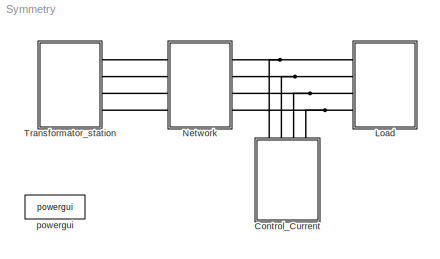
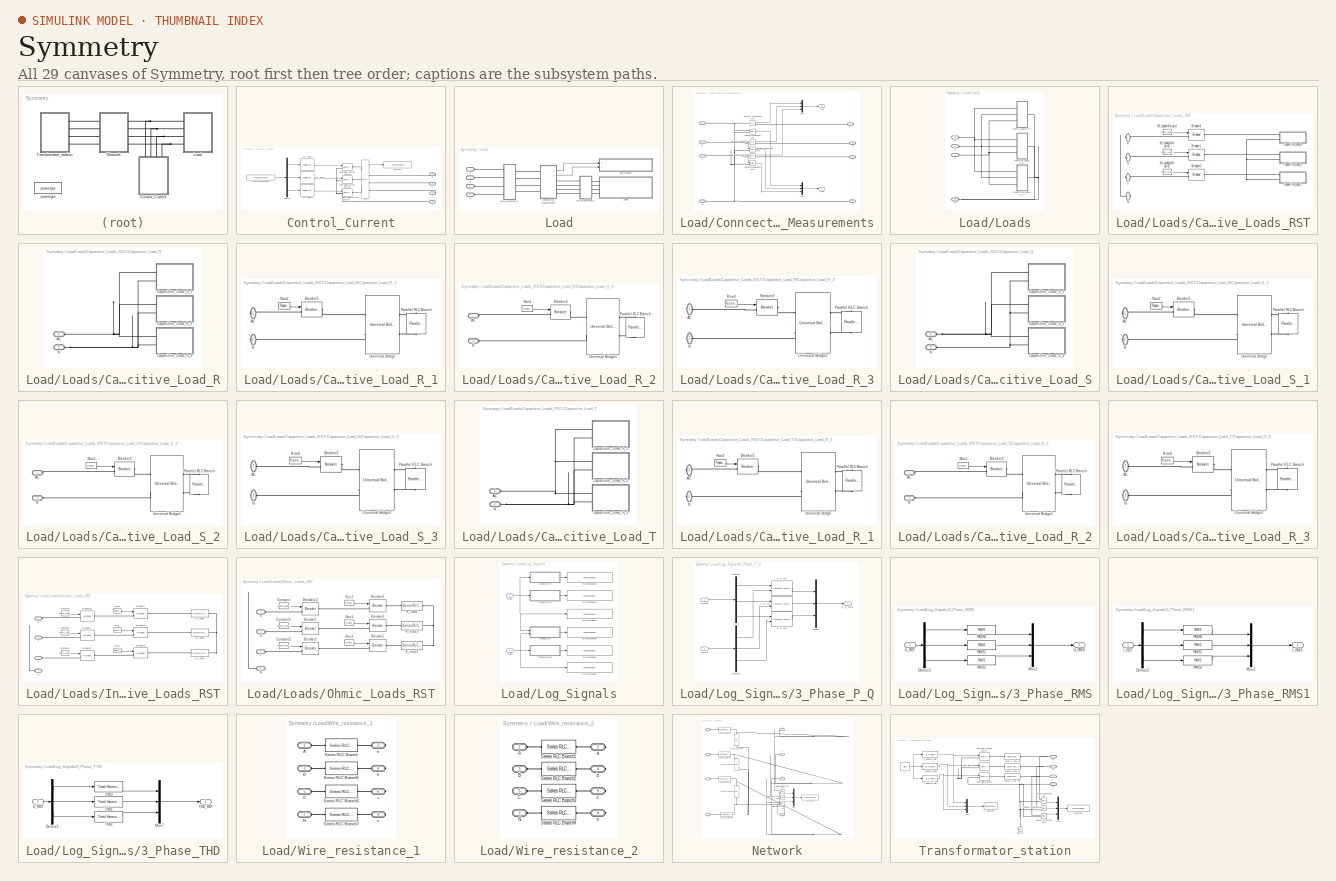
[diagram: thumbnail index - all 29 canvases of the model, root first then tree order]
MODEL Symmetry
KIND model
BLOCK [SubSystem] Control_Current
  Ports = [0, 0, 0, 0, 0, 0, 4]
  RequestExecContextInheritance = off
  SID = 1780
BLOCK [Reference] Control_Current/Controlled Current Source  REF=powerlib/Electrical\nSources/Controlled Current Source
  Amplitude = 0
  Frequency = 0
  Initialize = on
  Measurements = None
  Phase = 0
  Ports = [1, 0, 0, 0, 0, 1, 1]
  SID = 1781
  SourceBlock = powerlib/Electrical\nSources/Controlled Current Source
  SourceType = Controlled Current Source
  Source_Type = AC
BLOCK [Reference] Control_Current/Controlled Current Source1  REF=powerlib/Electrical\nSources/Controlled Current Source
  Amplitude = 0
  Frequency = 0
  Initialize = on
  Measurements = None
  Phase = 0
  Ports = [1, 0, 0, 0, 0, 1, 1]
  SID = 1782
  SourceBlock = powerlib/Electrical\nSources/Controlled Current Source
  SourceType = Controlled Current Source
  Source_Type = AC
BLOCK [Reference] Control_Current/Controlled Current Source2  REF=powerlib/Electrical\nSources/Controlled Current Source
  Amplitude = 0
  Frequency = 0
  Initialize = on
  Measurements = None
  Phase = 0
  Ports = [1, 0, 0, 0, 0, 1, 1]
  SID = 1783
  SourceBlock = powerlib/Electrical\nSources/Controlled Current Source
  SourceType = Controlled Current Source
  Source_Type = AC
BLOCK [Demux] Control_Current/Demux
  DisplayOption = bar
  Outputs = 3
  Ports = [1, 3]
  SID = 1784
BLOCK [FromWorkspace] Control_Current/From\nWorkspace
  OutDataTypeStr = double
  SID = 1785
  SampleTime = sample
  VariableName = Control_Current
  ZeroCross = on
BLOCK [Reference] Control_Current/M3  REF=powerlib/Measurements/Three-Phase\nV-I Measurement
  CurrentMeasurement = yes
  Ipu = off
  LabelI = I_RST
  LabelV = V_RST
  OutputType = Complex
  PSBequivalent = 0
  Pbase = 100e6
  PhasorSimulation = off
  Ports = [0, 1, 0, 0, 0, 3, 3]
  SID = 1786
  SetLabelI = off
  SetLabelV = off
  SourceBlock = powerlib/Measurements/Three-Phase\nV-I Measurement
  SourceType = Three-Phase VI Measurement
  Vbase = 500e3
  VoltageMeasurement = no
  Vpu = off
  VpuLL = off
BLOCK [PMIOPort] Control_Current/N
  Port = 4
  SID = 1794
  Side = Right
BLOCK [Reference] Control_Current/P(t) Filter  REF=dsparch4/Analog\nFilter Design
  N = Butterworth_filter_order
  Ports = [1, 1]
  Rp = 2
  Rs = 40
  SID = 1787
  SourceBlock = dsparch4/Analog\nFilter Design
  SourceType = Analog Filter Design
  Whi = 80
  Wlo = Butterworth_passband_frequency
  filttype = Lowpass
  method = Butterworth
BLOCK [Reference] Control_Current/P(t) Filter1  REF=dsparch4/Analog\nFilter Design
  N = Butterworth_filter_order
  Ports = [1, 1]
  Rp = 2
  Rs = 40
  SID = 1788
  SourceBlock = dsparch4/Analog\nFilter Design
  SourceType = Analog Filter Design
  Whi = 80
  Wlo = Butterworth_passband_frequency
  filttype = Lowpass
  method = Butterworth
BLOCK [Reference] Control_Current/P(t) Filter2  REF=dsparch4/Analog\nFilter Design
  N = Butterworth_filter_order
  Ports = [1, 1]
  Rp = 2
  Rs = 40
  SID = 1789
  SourceBlock = dsparch4/Analog\nFilter Design
  SourceType = Analog Filter Design
  Whi = 80
  Wlo = Butterworth_passband_frequency
  filttype = Lowpass
  method = Butterworth
BLOCK [PMIOPort] Control_Current/R
  Port = 1
  SID = 1791
  Side = Right
BLOCK [PMIOPort] Control_Current/S
  Port = 2
  SID = 1792
  Side = Right
BLOCK [ToWorkspace] Control_Current/Sources1
  FixptAsFi = on
  MaxDataPoints = inf
  Ports = [1]
  SID = 1790
  SampleTime = sample
  SaveFormat = Structure With Time
  VariableName = Control_Current_Values
BLOCK [PMIOPort] Control_Current/T
  Port = 3
  SID = 1793
  Side = Right
BLOCK [SubSystem] Load
  Ports = [0, 0, 0, 0, 0, 4]
  RequestExecContextInheritance = off
  SID = 1650
BLOCK [SubSystem] Load/Conncection_Measurements
  Ports = [0, 2, 0, 0, 0, 4, 4]
  RequestExecContextInheritance = off
  SID = 1753
BLOCK [PMIOPort] Load/Conncection_Measurements/A
  Port = 1
  SID = 1763
  Side = Left
BLOCK [PMIOPort] Load/Conncection_Measurements/B
  Port = 3
  SID = 1765
  Side = Left
BLOCK [PMIOPort] Load/Conncection_Measurements/C
  Port = 5
  SID = 1767
  Side = Left
BLOCK [Reference] Load/Conncection_Measurements/Current Measurement  REF=powerlib/Measurements/Current Measurement
  OutputType = Complex
  PSBequivalent = 0
  PhasorSimulation = off
  Ports = [0, 1, 0, 0, 0, 1, 1]
  SID = 1754
  SourceBlock = powerlib/Measurements/Current Measurement
  SourceType = Current Measurement
BLOCK [Reference] Load/Conncection_Measurements/Current Measurement1  REF=powerlib/Measurements/Current Measurement
  OutputType = Complex
  PSBequivalent = 0
  PhasorSimulation = off
  Ports = [0, 1, 0, 0, 0, 1, 1]
  SID = 1755
  SourceBlock = powerlib/Measurements/Current Measurement
  SourceType = Current Measurement
BLOCK [Reference] Load/Conncection_Measurements/Current Measurement2  REF=powerlib/Measurements/Current Measurement
  OutputType = Complex
  PSBequivalent = 0
  PhasorSimulation = off
  Ports = [0, 1, 0, 0, 0, 1, 1]
  SID = 1756
  SourceBlock = powerlib/Measurements/Current Measurement
  SourceType = Current Measurement
BLOCK [Outport] Load/Conncection_Measurements/I_abc
  IconDisplay = Port number
  Port = 2
  SID = 1770
BLOCK [Mux] Load/Conncection_Measurements/Mux
  DisplayOption = bar
  Inputs = 3
  Ports = [3, 1]
  SID = 1757
BLOCK [Mux] Load/Conncection_Measurements/Mux1
  DisplayOption = bar
  Inputs = 3
  Ports = [3, 1]
  SID = 1758
BLOCK [PMIOPort] Load/Conncection_Measurements/N
  Port = 7
  SID = 1822
  Side = Left
BLOCK [Outport] Load/Conncection_Measurements/V_abc
  IconDisplay = Port number
  SID = 1769
BLOCK [Reference] Load/Conncection_Measurements/Voltage Measurement  REF=powerlib/Measurements/Voltage Measurement
  OutputType = Complex
  PSBequivalent = 0
  PhasorSimulation = off
  Ports = [0, 1, 0, 0, 0, 2]
  SID = 1760
  SourceBlock = powerlib/Measurements/Voltage Measurement
  SourceType = Voltage Measurement
BLOCK [Reference] Load/Conncection_Measurements/Voltage Measurement1  REF=powerlib/Measurements/Voltage Measurement
  OutputType = Complex
  PSBequivalent = 0
  PhasorSimulation = off
  Ports = [0, 1, 0, 0, 0, 2]
  SID = 1761
  SourceBlock = powerlib/Measurements/Voltage Measurement
  SourceType = Voltage Measurement
BLOCK [Reference] Load/Conncection_Measurements/Voltage Measurement2  REF=powerlib/Measurements/Voltage Measurement
  OutputType = Complex
  PSBequivalent = 0
  PhasorSimulation = off
  Ports = [0, 1, 0, 0, 0, 2]
  SID = 1762
  SourceBlock = powerlib/Measurements/Voltage Measurement
  SourceType = Voltage Measurement
BLOCK [PMIOPort] Load/Conncection_Measurements/a
  Port = 2
  SID = 1764
  Side = Right
BLOCK [PMIOPort] Load/Conncection_Measurements/b
  Port = 4
  SID = 1766
  Side = Right
BLOCK [PMIOPort] Load/Conncection_Measurements/c
  Port = 6
  SID = 1768
  Side = Right
BLOCK [PMIOPort] Load/Conncection_Measurements/n
  Port = 8
  SID = 1823
  Side = Right
BLOCK [SubSystem] Load/Loads
  Ports = [0, 0, 0, 0, 0, 4]
  RequestExecContextInheritance = off
  SID = 1651
BLOCK [SubSystem] Load/Loads/Capacitive_Loads_RST
  Ports = [0, 0, 0, 0, 0, 1, 3]
  RequestExecContextInheritance = off
  SID = 1652
BLOCK [Reference] Load/Loads/Capacitive_Loads_RST/Breaker1  REF=powerlib/Elements/Breaker
  BreakerResistance = 0.01
  External = on
  InitialState = 0
  Measurements = None
  MoreParameters = off
  NoBreakLoop = off
  Ports = [1, 0, 0, 0, 0, 1, 1]
  SID = 1653
  SnubberCapacitance = inf
  SnubberResistance = 1e7
  SourceBlock = powerlib/Elements/Breaker
  SourceType = Breaker
  SwitchingTimes = [ 1/60  5/60 ]
BLOCK [Reference] Load/Loads/Capacitive_Loads_RST/Breaker4  REF=powerlib/Elements/Breaker
  BreakerResistance = 0.01
  External = on
  InitialState = 0
  Measurements = None
  MoreParameters = off
  NoBreakLoop = off
  Ports = [1, 0, 0, 0, 0, 1, 1]
  SID = 1654
  SnubberCapacitance = inf
  SnubberResistance = 1e7
  SourceBlock = powerlib/Elements/Breaker
  SourceType = Breaker
  SwitchingTimes = [ 1/60  5/60 ]
BLOCK [Reference] Load/Loads/Capacitive_Loads_RST/Breaker6  REF=powerlib/Elements/Breaker
  BreakerResistance = 0.01
  External = on
  InitialState = 0
  Measurements = None
  MoreParameters = off
  NoBreakLoop = off
  Ports = [1, 0, 0, 0, 0, 1, 1]
  SID = 1655
  SnubberCapacitance = inf
  SnubberResistance = 1e7
  SourceBlock = powerlib/Elements/Breaker
  SourceType = Breaker
  SwitchingTimes = [ 1/60  5/60 ]
BLOCK [SubSystem] Load/Loads/Capacitive_Loads_RST/Capacitive_Load_R
  Ports = [0, 0, 0, 0, 0, 2]
  RequestExecContextInheritance = off
  SID = 1824
BLOCK [PMIOPort] Load/Loads/Capacitive_Loads_RST/Capacitive_Load_R/AC
  Port = 1
  SID = 1846
  Side = Left
BLOCK [SubSystem] Load/Loads/Capacitive_Loads_RST/Capacitive_Load_R/Capacitive_Load_R_1
  Ports = [0, 0, 0, 0, 0, 0, 2]
  RequestExecContextInheritance = off
  SID = 1825
BLOCK [PMIOPort] Load/Loads/Capacitive_Loads_RST/Capacitive_Load_R/Capacitive_Load_R_1/AC
  Port = 1
  SID = 1830
  Side = Right
BLOCK [Reference] Load/Loads/Capacitive_Loads_RST/Capacitive_Load_R/Capacitive_Load_R_1/Breaker5  REF=powerlib/Elements/Breaker
  BreakerResistance = 0.01
  External = on
  InitialState = 0
  Measurements = None
  MoreParameters = off
  NoBreakLoop = off
  Ports = [1, 0, 0, 0, 0, 1, 1]
  SID = 1826
  SnubberCapacitance = inf
  SnubberResistance = 1e7
  SourceBlock = powerlib/Elements/Breaker
  SourceType = Breaker
  SwitchingTimes = [ 1/60  5/60 ]
BLOCK [PMIOPort] Load/Loads/Capacitive_Loads_RST/Capacitive_Load_R/Capacitive_Load_R_1/N
  Port = 2
  SID = 1831
  Side = Right
BLOCK [Reference] Load/Loads/Capacitive_Loads_RST/Capacitive_Load_R/Capacitive_Load_R_1/Parallel RLC Branch  REF=powerlib/Elements/Parallel RLC Branch
  AttributesFormatString = \\n
  BranchType = RC
  Capacitance = Capacitive_Load_R_RC(2,1)
  Inductance = 1e-3
  InitialCurrent = 0
  InitialVoltage = 0
  LConnTagsString = a
  Measurements = None
  Ports = [0, 0, 0, 0, 0, 1, 1]
  RConnTagsString = __new0
  Resistance = Capacitive_Load_R_RC(1,1)
  SID = 1827
  SetiL0 = off
  Setx0 = off
  SourceBlock = powerlib/Elements/Parallel RLC Branch
  SourceType = Parallel RLC Branch
BLOCK [Reference] Load/Loads/Capacitive_Loads_RST/Capacitive_Load_R/Capacitive_Load_R_1/Ron3  REF=simulink/Sources/Repeating\nSequence\nStair
  ConRadixGroup = Best Precision: Vector-wise
  LockScale = off
  OutDataType = float('double')
  OutDataTypeStr = float('double')
  OutMax = []
  OutMin = []
  OutScaling = 2^-12
  OutValues = Capacitive_Load_R_Switching_Sequence(:,1)
  OutputDataTypeScalingMode = Specify via dialog
  Ports = [0, 1]
  SID = 1828
  SourceBlock = simulink/Sources/Repeating\nSequence\nStair
  SourceType = Repeating Sequence Stair
  tsamp = Capacitive_Load_R_Switching_Speed(1)
BLOCK [Reference] Load/Loads/Capacitive_Loads_RST/Capacitive_Load_R/Capacitive_Load_R_1/Universal Bridge  REF=powerlib/Power\nElectronics/Universal Bridge
  Arms = 2
  Device = Diodes
  ForwardVoltage = 0.8
  ForwardVoltages = [  0  0  ]
  GTOparameters = [ 10e-6 , 20e-6 ]
  IGBTparameters = [ 1e-6 , 2e-6 ]
  Lon = 0
  Measurements = None
  Measurements_2 = None
  Ports = [0, 0, 0, 0, 0, 2, 2]
  Ron = 1e-3
  SID = 1829
  SnubberCapacitance = inf
  SnubberResistance = 1e5
  SourceBlock = powerlib/Power\nElectronics/Universal Bridge
  SourceType = Universal Bridge
  converterType = Rectifier
BLOCK [SubSystem] Load/Loads/Capacitive_Loads_RST/Capacitive_Load_R/Capacitive_Load_R_2
  Ports = [0, 0, 0, 0, 0, 2]
  RequestExecContextInheritance = off
  SID = 1832
BLOCK [PMIOPort] Load/Loads/Capacitive_Loads_RST/Capacitive_Load_R/Capacitive_Load_R_2/AC
  Port = 1
  SID = 1837
  Side = Left
BLOCK [Reference] Load/Loads/Capacitive_Loads_RST/Capacitive_Load_R/Capacitive_Load_R_2/Breaker2  REF=powerlib/Elements/Breaker
  BreakerResistance = 0.01
  External = on
  InitialState = 0
  Measurements = None
  MoreParameters = off
  NoBreakLoop = off
  Ports = [1, 0, 0, 0, 0, 1, 1]
  SID = 1833
  SnubberCapacitance = inf
  SnubberResistance = 1e7
  SourceBlock = powerlib/Elements/Breaker
  SourceType = Breaker
  SwitchingTimes = [ 1/60  5/60 ]
BLOCK [PMIOPort] Load/Loads/Capacitive_Loads_RST/Capacitive_Load_R/Capacitive_Load_R_2/N
  Port = 2
  SID = 1838
  Side = Left
BLOCK [Reference] Load/Loads/Capacitive_Loads_RST/Capacitive_Load_R/Capacitive_Load_R_2/Parallel RLC Branch  REF=powerlib/Elements/Parallel RLC Branch
  AttributesFormatString = \\n
  BranchType = RC
  Capacitance = Capacitive_Load_R_RC(2,2)
  Inductance = 1e-3
  InitialCurrent = 0
  InitialVoltage = 0
  LConnTagsString = a
  Measurements = None
  Ports = [0, 0, 0, 0, 0, 1, 1]
  RConnTagsString = __new0
  Resistance = Capacitive_Load_R_RC(1,2)
  SID = 1834
  SetiL0 = off
  Setx0 = off
  SourceBlock = powerlib/Elements/Parallel RLC Branch
  SourceType = Parallel RLC Branch
BLOCK [Reference] Load/Loads/Capacitive_Loads_RST/Capacitive_Load_R/Capacitive_Load_R_2/Ron1  REF=simulink/Sources/Repeating\nSequence\nStair
  ConRadixGroup = Best Precision: Vector-wise
  LockScale = off
  OutDataType = float('double')
  OutDataTypeStr = float('double')
  OutMax = []
  OutMin = []
  OutScaling = 2^-12
  OutValues = Capacitive_Load_R_Switching_Sequence(:,2)
  OutputDataTypeScalingMode = Specify via dialog
  Ports = [0, 1]
  SID = 1835
  SourceBlock = simulink/Sources/Repeating\nSequence\nStair
  SourceType = Repeating Sequence Stair
  tsamp = Capacitive_Load_R_Switching_Speed(2)
BLOCK [Reference] Load/Loads/Capacitive_Loads_RST/Capacitive_Load_R/Capacitive_Load_R_2/Universal Bridge1  REF=powerlib/Power\nElectronics/Universal Bridge
  Arms = 2
  Device = Diodes
  ForwardVoltage = 0.8
  ForwardVoltages = [  0  0  ]
  GTOparameters = [ 10e-6 , 20e-6 ]
  IGBTparameters = [ 1e-6 , 2e-6 ]
  Lon = 0
  Measurements = None
  Measurements_2 = None
  Ports = [0, 0, 0, 0, 0, 2, 2]
  Ron = 1e-3
  SID = 1836
  SnubberCapacitance = inf
  SnubberResistance = 1e5
  SourceBlock = powerlib/Power\nElectronics/Universal Bridge
  SourceType = Universal Bridge
  converterType = Rectifier
BLOCK [SubSystem] Load/Loads/Capacitive_Loads_RST/Capacitive_Load_R/Capacitive_Load_R_3
  Ports = [0, 0, 0, 0, 0, 2]
  RequestExecContextInheritance = off
  SID = 1839
BLOCK [PMIOPort] Load/Loads/Capacitive_Loads_RST/Capacitive_Load_R/Capacitive_Load_R_3/AC
  Port = 1
  SID = 1844
  Side = Left
BLOCK [Reference] Load/Loads/Capacitive_Loads_RST/Capacitive_Load_R/Capacitive_Load_R_3/Breaker3  REF=powerlib/Elements/Breaker
  BreakerResistance = 0.01
  External = on
  InitialState = 0
  Measurements = None
  MoreParameters = off
  NoBreakLoop = off
  Ports = [1, 0, 0, 0, 0, 1, 1]
  SID = 1840
  SnubberCapacitance = inf
  SnubberResistance = 1e7
  SourceBlock = powerlib/Elements/Breaker
  SourceType = Breaker
  SwitchingTimes = [ 1/60  5/60 ]
BLOCK [PMIOPort] Load/Loads/Capacitive_Loads_RST/Capacitive_Load_R/Capacitive_Load_R_3/N 
  Port = 2
  SID = 1845
  Side = Left
BLOCK [Reference] Load/Loads/Capacitive_Loads_RST/Capacitive_Load_R/Capacitive_Load_R_3/Parallel RLC Branch  REF=powerlib/Elements/Parallel RLC Branch
  AttributesFormatString = \\n
  BranchType = RC
  Capacitance = Capacitive_Load_R_RC(2,3)
  Inductance = 1e-3
  InitialCurrent = 0
  InitialVoltage = 0
  LConnTagsString = a
  Measurements = None
  Ports = [0, 0, 0, 0, 0, 1, 1]
  RConnTagsString = __new0
  Resistance = Capacitive_Load_R_RC(1,3)
  SID = 1841
  SetiL0 = off
  Setx0 = off
  SourceBlock = powerlib/Elements/Parallel RLC Branch
  SourceType = Parallel RLC Branch
BLOCK [Reference] Load/Loads/Capacitive_Loads_RST/Capacitive_Load_R/Capacitive_Load_R_3/Ron4  REF=simulink/Sources/Repeating\nSequence\nStair
  ConRadixGroup = Best Precision: Vector-wise
  LockScale = off
  OutDataType = float('double')
  OutDataTypeStr = float('double')
  OutMax = []
  OutMin = []
  OutScaling = 2^-12
  OutValues = Capacitive_Load_R_Switching_Sequence(:,3)
  OutputDataTypeScalingMode = Specify via dialog
  Ports = [0, 1]
  SID = 1842
  SourceBlock = simulink/Sources/Repeating\nSequence\nStair
  SourceType = Repeating Sequence Stair
  tsamp = Capacitive_Load_R_Switching_Speed(3)
BLOCK [Reference] Load/Loads/Capacitive_Loads_RST/Capacitive_Load_R/Capacitive_Load_R_3/Universal Bridge2  REF=powerlib/Power\nElectronics/Universal Bridge
  Arms = 2
  Device = Diodes
  ForwardVoltage = 0.8
  ForwardVoltages = [  0  0  ]
  GTOparameters = [ 10e-6 , 20e-6 ]
  IGBTparameters = [ 1e-6 , 2e-6 ]
  Lon = 0
  Measurements = None
  Measurements_2 = None
  Ports = [0, 0, 0, 0, 0, 2, 2]
  Ron = 1e-3
  SID = 1843
  SnubberCapacitance = inf
  SnubberResistance = 1e5
  SourceBlock = powerlib/Power\nElectronics/Universal Bridge
  SourceType = Universal Bridge
  converterType = Rectifier
BLOCK [PMIOPort] Load/Loads/Capacitive_Loads_RST/Capacitive_Load_R/N
  Port = 2
  SID = 1847
  Side = Left
BLOCK [SubSystem] Load/Loads/Capacitive_Loads_RST/Capacitive_Load_S
  Ports = [0, 0, 0, 0, 0, 2]
  RequestExecContextInheritance = off
  SID = 1848
BLOCK [PMIOPort] Load/Loads/Capacitive_Loads_RST/Capacitive_Load_S/AC
  Port = 1
  SID = 1870
  Side = Left
BLOCK [SubSystem] Load/Loads/Capacitive_Loads_RST/Capacitive_Load_S/Capacitive_Load_S_1
  Ports = [0, 0, 0, 0, 0, 0, 2]
  RequestExecContextInheritance = off
  SID = 1849
BLOCK [PMIOPort] Load/Loads/Capacitive_Loads_RST/Capacitive_Load_S/Capacitive_Load_S_1/AC
  Port = 1
  SID = 1854
  Side = Right
BLOCK [Reference] Load/Loads/Capacitive_Loads_RST/Capacitive_Load_S/Capacitive_Load_S_1/Breaker5  REF=powerlib/Elements/Breaker
  BreakerResistance = 0.01
  External = on
  InitialState = 0
  Measurements = None
  MoreParameters = off
  NoBreakLoop = off
  Ports = [1, 0, 0, 0, 0, 1, 1]
  SID = 1850
  SnubberCapacitance = inf
  SnubberResistance = 1e7
  SourceBlock = powerlib/Elements/Breaker
  SourceType = Breaker
  SwitchingTimes = [ 1/60  5/60 ]
BLOCK [PMIOPort] Load/Loads/Capacitive_Loads_RST/Capacitive_Load_S/Capacitive_Load_S_1/N
  Port = 2
  SID = 1855
  Side = Right
BLOCK [Reference] Load/Loads/Capacitive_Loads_RST/Capacitive_Load_S/Capacitive_Load_S_1/Parallel RLC Branch  REF=powerlib/Elements/Parallel RLC Branch
  AttributesFormatString = \\n
  BranchType = RC
  Capacitance = Capacitive_Load_S_RC(2,1)
  Inductance = 1e-3
  InitialCurrent = 0
  InitialVoltage = 0
  LConnTagsString = a
  Measurements = None
  Ports = [0, 0, 0, 0, 0, 1, 1]
  RConnTagsString = __new0
  Resistance = Capacitive_Load_S_RC(1,1)
  SID = 1851
  SetiL0 = off
  Setx0 = off
  SourceBlock = powerlib/Elements/Parallel RLC Branch
  SourceType = Parallel RLC Branch
BLOCK [Reference] Load/Loads/Capacitive_Loads_RST/Capacitive_Load_S/Capacitive_Load_S_1/Ron3  REF=simulink/Sources/Repeating\nSequence\nStair
  ConRadixGroup = Best Precision: Vector-wise
  LockScale = off
  OutDataType = float('double')
  OutDataTypeStr = float('double')
  OutMax = []
  OutMin = []
  OutScaling = 2^-12
  OutValues = Capacitive_Load_S_Switching_Sequence(:,1)
  OutputDataTypeScalingMode = Specify via dialog
  Ports = [0, 1]
  SID = 1852
  SourceBlock = simulink/Sources/Repeating\nSequence\nStair
  SourceType = Repeating Sequence Stair
  tsamp = Capacitive_Load_S_Switching_Speed(1)
BLOCK [Reference] Load/Loads/Capacitive_Loads_RST/Capacitive_Load_S/Capacitive_Load_S_1/Universal Bridge  REF=powerlib/Power\nElectronics/Universal Bridge
  Arms = 2
  Device = Diodes
  ForwardVoltage = 0.8
  ForwardVoltages = [  0  0  ]
  GTOparameters = [ 10e-6 , 20e-6 ]
  IGBTparameters = [ 1e-6 , 2e-6 ]
  Lon = 0
  Measurements = None
  Measurements_2 = None
  Ports = [0, 0, 0, 0, 0, 2, 2]
  Ron = 1e-3
  SID = 1853
  SnubberCapacitance = inf
  SnubberResistance = 1e5
  SourceBlock = powerlib/Power\nElectronics/Universal Bridge
  SourceType = Universal Bridge
  converterType = Rectifier
BLOCK [SubSystem] Load/Loads/Capacitive_Loads_RST/Capacitive_Load_S/Capacitive_Load_S_2
  Ports = [0, 0, 0, 0, 0, 2]
  RequestExecContextInheritance = off
  SID = 1856
BLOCK [PMIOPort] Load/Loads/Capacitive_Loads_RST/Capacitive_Load_S/Capacitive_Load_S_2/AC
  Port = 1
  SID = 1861
  Side = Left
BLOCK [Reference] Load/Loads/Capacitive_Loads_RST/Capacitive_Load_S/Capacitive_Load_S_2/Breaker2  REF=powerlib/Elements/Breaker
  BreakerResistance = 0.01
  External = on
  InitialState = 0
  Measurements = None
  MoreParameters = off
  NoBreakLoop = off
  Ports = [1, 0, 0, 0, 0, 1, 1]
  SID = 1857
  SnubberCapacitance = inf
  SnubberResistance = 1e7
  SourceBlock = powerlib/Elements/Breaker
  SourceType = Breaker
  SwitchingTimes = [ 1/60  5/60 ]
BLOCK [PMIOPort] Load/Loads/Capacitive_Loads_RST/Capacitive_Load_S/Capacitive_Load_S_2/N
  Port = 2
  SID = 1862
  Side = Left
BLOCK [Reference] Load/Loads/Capacitive_Loads_RST/Capacitive_Load_S/Capacitive_Load_S_2/Parallel RLC Branch  REF=powerlib/Elements/Parallel RLC Branch
  AttributesFormatString = \\n
  BranchType = RC
  Capacitance = Capacitive_Load_S_RC(2,2)
  Inductance = 1e-3
  InitialCurrent = 0
  InitialVoltage = 0
  LConnTagsString = a
  Measurements = None
  Ports = [0, 0, 0, 0, 0, 1, 1]
  RConnTagsString = __new0
  Resistance = Capacitive_Load_S_RC(1,2)
  SID = 1858
  SetiL0 = off
  Setx0 = off
  SourceBlock = powerlib/Elements/Parallel RLC Branch
  SourceType = Parallel RLC Branch
BLOCK [Reference] Load/Loads/Capacitive_Loads_RST/Capacitive_Load_S/Capacitive_Load_S_2/Ron1  REF=simulink/Sources/Repeating\nSequence\nStair
  ConRadixGroup = Best Precision: Vector-wise
  LockScale = off
  OutDataType = float('double')
  OutDataTypeStr = float('double')
  OutMax = []
  OutMin = []
  OutScaling = 2^-12
  OutValues = Capacitive_Load_S_Switching_Sequence(:,2)
  OutputDataTypeScalingMode = Specify via dialog
  Ports = [0, 1]
  SID = 1859
  SourceBlock = simulink/Sources/Repeating\nSequence\nStair
  SourceType = Repeating Sequence Stair
  tsamp = Capacitive_Load_S_Switching_Speed(2)
BLOCK [Reference] Load/Loads/Capacitive_Loads_RST/Capacitive_Load_S/Capacitive_Load_S_2/Universal Bridge1  REF=powerlib/Power\nElectronics/Universal Bridge
  Arms = 2
  Device = Diodes
  ForwardVoltage = 0.8
  ForwardVoltages = [  0  0  ]
  GTOparameters = [ 10e-6 , 20e-6 ]
  IGBTparameters = [ 1e-6 , 2e-6 ]
  Lon = 0
  Measurements = None
  Measurements_2 = None
  Ports = [0, 0, 0, 0, 0, 2, 2]
  Ron = 1e-3
  SID = 1860
  SnubberCapacitance = inf
  SnubberResistance = 1e5
  SourceBlock = powerlib/Power\nElectronics/Universal Bridge
  SourceType = Universal Bridge
  converterType = Rectifier
BLOCK [SubSystem] Load/Loads/Capacitive_Loads_RST/Capacitive_Load_S/Capacitive_Load_S_3
  Ports = [0, 0, 0, 0, 0, 2]
  RequestExecContextInheritance = off
  SID = 1863
BLOCK [PMIOPort] Load/Loads/Capacitive_Loads_RST/Capacitive_Load_S/Capacitive_Load_S_3/AC
  Port = 1
  SID = 1868
  Side = Left
BLOCK [Reference] Load/Loads/Capacitive_Loads_RST/Capacitive_Load_S/Capacitive_Load_S_3/Breaker3  REF=powerlib/Elements/Breaker
  BreakerResistance = 0.01
  External = on
  InitialState = 0
  Measurements = None
  MoreParameters = off
  NoBreakLoop = off
  Ports = [1, 0, 0, 0, 0, 1, 1]
  SID = 1864
  SnubberCapacitance = inf
  SnubberResistance = 1e7
  SourceBlock = powerlib/Elements/Breaker
  SourceType = Breaker
  SwitchingTimes = [ 1/60  5/60 ]
BLOCK [PMIOPort] Load/Loads/Capacitive_Loads_RST/Capacitive_Load_S/Capacitive_Load_S_3/N 
  Port = 2
  SID = 1869
  Side = Left
BLOCK [Reference] Load/Loads/Capacitive_Loads_RST/Capacitive_Load_S/Capacitive_Load_S_3/Parallel RLC Branch  REF=powerlib/Elements/Parallel RLC Branch
  AttributesFormatString = \\n
  BranchType = RC
  Capacitance = Capacitive_Load_S_RC(2,3)
  Inductance = 1e-3
  InitialCurrent = 0
  InitialVoltage = 0
  LConnTagsString = a
  Measurements = None
  Ports = [0, 0, 0, 0, 0, 1, 1]
  RConnTagsString = __new0
  Resistance = Capacitive_Load_S_RC(1,3)
  SID = 1865
  SetiL0 = off
  Setx0 = off
  SourceBlock = powerlib/Elements/Parallel RLC Branch
  SourceType = Parallel RLC Branch
BLOCK [Reference] Load/Loads/Capacitive_Loads_RST/Capacitive_Load_S/Capacitive_Load_S_3/Ron4  REF=simulink/Sources/Repeating\nSequence\nStair
  ConRadixGroup = Best Precision: Vector-wise
  LockScale = off
  OutDataType = float('double')
  OutDataTypeStr = float('double')
  OutMax = []
  OutMin = []
  OutScaling = 2^-12
  OutValues = Capacitive_Load_S_Switching_Sequence(:,3)
  OutputDataTypeScalingMode = Specify via dialog
  Ports = [0, 1]
  SID = 1866
  SourceBlock = simulink/Sources/Repeating\nSequence\nStair
  SourceType = Repeating Sequence Stair
  tsamp = Capacitive_Load_S_Switching_Speed(3)
BLOCK [Reference] Load/Loads/Capacitive_Loads_RST/Capacitive_Load_S/Capacitive_Load_S_3/Universal Bridge2  REF=powerlib/Power\nElectronics/Universal Bridge
  Arms = 2
  Device = Diodes
  ForwardVoltage = 0.8
  ForwardVoltages = [  0  0  ]
  GTOparameters = [ 10e-6 , 20e-6 ]
  IGBTparameters = [ 1e-6 , 2e-6 ]
  Lon = 0
  Measurements = None
  Measurements_2 = None
  Ports = [0, 0, 0, 0, 0, 2, 2]
  Ron = 1e-3
  SID = 1867
  SnubberCapacitance = inf
  SnubberResistance = 1e5
  SourceBlock = powerlib/Power\nElectronics/Universal Bridge
  SourceType = Universal Bridge
  converterType = Rectifier
BLOCK [PMIOPort] Load/Loads/Capacitive_Loads_RST/Capacitive_Load_S/N
  Port = 2
  SID = 1871
  Side = Left
BLOCK [SubSystem] Load/Loads/Capacitive_Loads_RST/Capacitive_Load_T
  Ports = [0, 0, 0, 0, 0, 2]
  RequestExecContextInheritance = off
  SID = 1872
BLOCK [PMIOPort] Load/Loads/Capacitive_Loads_RST/Capacitive_Load_T/AC
  Port = 1
  SID = 1894
  Side = Left
BLOCK [SubSystem] Load/Loads/Capacitive_Loads_RST/Capacitive_Load_T/Capacitive_Load_R_1
  Ports = [0, 0, 0, 0, 0, 0, 2]
  RequestExecContextInheritance = off
  SID = 1873
BLOCK [PMIOPort] Load/Loads/Capacitive_Loads_RST/Capacitive_Load_T/Capacitive_Load_R_1/AC
  Port = 1
  SID = 1878
  Side = Right
BLOCK [Reference] Load/Loads/Capacitive_Loads_RST/Capacitive_Load_T/Capacitive_Load_R_1/Breaker5  REF=powerlib/Elements/Breaker
  BreakerResistance = 0.01
  External = on
  InitialState = 0
  Measurements = None
  MoreParameters = off
  NoBreakLoop = off
  Ports = [1, 0, 0, 0, 0, 1, 1]
  SID = 1874
  SnubberCapacitance = inf
  SnubberResistance = 1e7
  SourceBlock = powerlib/Elements/Breaker
  SourceType = Breaker
  SwitchingTimes = [ 1/60  5/60 ]
BLOCK [PMIOPort] Load/Loads/Capacitive_Loads_RST/Capacitive_Load_T/Capacitive_Load_R_1/N
  Port = 2
  SID = 1879
  Side = Right
BLOCK [Reference] Load/Loads/Capacitive_Loads_RST/Capacitive_Load_T/Capacitive_Load_R_1/Parallel RLC Branch  REF=powerlib/Elements/Parallel RLC Branch
  AttributesFormatString = \\n
  BranchType = RC
  Capacitance = Capacitive_Load_T_RC(2,1)
  Inductance = 1e-3
  InitialCurrent = 0
  InitialVoltage = 0
  LConnTagsString = a
  Measurements = None
  Ports = [0, 0, 0, 0, 0, 1, 1]
  RConnTagsString = __new0
  Resistance = Capacitive_Load_T_RC(1,1)
  SID = 1875
  SetiL0 = off
  Setx0 = off
  SourceBlock = powerlib/Elements/Parallel RLC Branch
  SourceType = Parallel RLC Branch
BLOCK [Reference] Load/Loads/Capacitive_Loads_RST/Capacitive_Load_T/Capacitive_Load_R_1/Ron3  REF=simulink/Sources/Repeating\nSequence\nStair
  ConRadixGroup = Best Precision: Vector-wise
  LockScale = off
  OutDataType = float('double')
  OutDataTypeStr = float('double')
  OutMax = []
  OutMin = []
  OutScaling = 2^-12
  OutValues = Capacitive_Load_T_Switching_Sequence(:,1)
  OutputDataTypeScalingMode = Specify via dialog
  Ports = [0, 1]
  SID = 1876
  SourceBlock = simulink/Sources/Repeating\nSequence\nStair
  SourceType = Repeating Sequence Stair
  tsamp = Capacitive_Load_T_Switching_Speed(1)
BLOCK [Reference] Load/Loads/Capacitive_Loads_RST/Capacitive_Load_T/Capacitive_Load_R_1/Universal Bridge  REF=powerlib/Power\nElectronics/Universal Bridge
  Arms = 2
  Device = Diodes
  ForwardVoltage = 0.8
  ForwardVoltages = [  0  0  ]
  GTOparameters = [ 10e-6 , 20e-6 ]
  IGBTparameters = [ 1e-6 , 2e-6 ]
  Lon = 0
  Measurements = None
  Measurements_2 = None
  Ports = [0, 0, 0, 0, 0, 2, 2]
  Ron = 1e-3
  SID = 1877
  SnubberCapacitance = inf
  SnubberResistance = 1e5
  SourceBlock = powerlib/Power\nElectronics/Universal Bridge
  SourceType = Universal Bridge
  converterType = Rectifier
BLOCK [SubSystem] Load/Loads/Capacitive_Loads_RST/Capacitive_Load_T/Capacitive_Load_R_2
  Ports = [0, 0, 0, 0, 0, 2]
  RequestExecContextInheritance = off
  SID = 1880
BLOCK [PMIOPort] Load/Loads/Capacitive_Loads_RST/Capacitive_Load_T/Capacitive_Load_R_2/AC
  Port = 1
  SID = 1885
  Side = Left
BLOCK [Reference] Load/Loads/Capacitive_Loads_RST/Capacitive_Load_T/Capacitive_Load_R_2/Breaker2  REF=powerlib/Elements/Breaker
  BreakerResistance = 0.01
  External = on
  InitialState = 0
  Measurements = None
  MoreParameters = off
  NoBreakLoop = off
  Ports = [1, 0, 0, 0, 0, 1, 1]
  SID = 1881
  SnubberCapacitance = inf
  SnubberResistance = 1e7
  SourceBlock = powerlib/Elements/Breaker
  SourceType = Breaker
  SwitchingTimes = [ 1/60  5/60 ]
BLOCK [PMIOPort] Load/Loads/Capacitive_Loads_RST/Capacitive_Load_T/Capacitive_Load_R_2/N
  Port = 2
  SID = 1886
  Side = Left
BLOCK [Reference] Load/Loads/Capacitive_Loads_RST/Capacitive_Load_T/Capacitive_Load_R_2/Parallel RLC Branch  REF=powerlib/Elements/Parallel RLC Branch
  AttributesFormatString = \\n
  BranchType = RC
  Capacitance = Capacitive_Load_T_RC(2,2)
  Inductance = 1e-3
  InitialCurrent = 0
  InitialVoltage = 0
  LConnTagsString = a
  Measurements = None
  Ports = [0, 0, 0, 0, 0, 1, 1]
  RConnTagsString = __new0
  Resistance = Capacitive_Load_T_RC(1,2)
  SID = 1882
  SetiL0 = off
  Setx0 = off
  SourceBlock = powerlib/Elements/Parallel RLC Branch
  SourceType = Parallel RLC Branch
BLOCK [Reference] Load/Loads/Capacitive_Loads_RST/Capacitive_Load_T/Capacitive_Load_R_2/Ron1  REF=simulink/Sources/Repeating\nSequence\nStair
  ConRadixGroup = Best Precision: Vector-wise
  LockScale = off
  OutDataType = float('double')
  OutDataTypeStr = float('double')
  OutMax = []
  OutMin = []
  OutScaling = 2^-12
  OutValues = Capacitive_Load_T_Switching_Sequence(:,2)
  OutputDataTypeScalingMode = Specify via dialog
  Ports = [0, 1]
  SID = 1883
  SourceBlock = simulink/Sources/Repeating\nSequence\nStair
  SourceType = Repeating Sequence Stair
  tsamp = Capacitive_Load_T_Switching_Speed(2)
BLOCK [Reference] Load/Loads/Capacitive_Loads_RST/Capacitive_Load_T/Capacitive_Load_R_2/Universal Bridge1  REF=powerlib/Power\nElectronics/Universal Bridge
  Arms = 2
  Device = Diodes
  ForwardVoltage = 0.8
  ForwardVoltages = [  0  0  ]
  GTOparameters = [ 10e-6 , 20e-6 ]
  IGBTparameters = [ 1e-6 , 2e-6 ]
  Lon = 0
  Measurements = None
  Measurements_2 = None
  Ports = [0, 0, 0, 0, 0, 2, 2]
  Ron = 1e-3
  SID = 1884
  SnubberCapacitance = inf
  SnubberResistance = 1e5
  SourceBlock = powerlib/Power\nElectronics/Universal Bridge
  SourceType = Universal Bridge
  converterType = Rectifier
BLOCK [SubSystem] Load/Loads/Capacitive_Loads_RST/Capacitive_Load_T/Capacitive_Load_R_3
  Ports = [0, 0, 0, 0, 0, 2]
  RequestExecContextInheritance = off
  SID = 1887
BLOCK [PMIOPort] Load/Loads/Capacitive_Loads_RST/Capacitive_Load_T/Capacitive_Load_R_3/AC
  Port = 1
  SID = 1892
  Side = Left
BLOCK [Reference] Load/Loads/Capacitive_Loads_RST/Capacitive_Load_T/Capacitive_Load_R_3/Breaker3  REF=powerlib/Elements/Breaker
  BreakerResistance = 0.01
  External = on
  InitialState = 0
  Measurements = None
  MoreParameters = off
  NoBreakLoop = off
  Ports = [1, 0, 0, 0, 0, 1, 1]
  SID = 1888
  SnubberCapacitance = inf
  SnubberResistance = 1e7
  SourceBlock = powerlib/Elements/Breaker
  SourceType = Breaker
  SwitchingTimes = [ 1/60  5/60 ]
BLOCK [PMIOPort] Load/Loads/Capacitive_Loads_RST/Capacitive_Load_T/Capacitive_Load_R_3/N 
  Port = 2
  SID = 1893
  Side = Left
BLOCK [Reference] Load/Loads/Capacitive_Loads_RST/Capacitive_Load_T/Capacitive_Load_R_3/Parallel RLC Branch  REF=powerlib/Elements/Parallel RLC Branch
  AttributesFormatString = \\n
  BranchType = RC
  Capacitance = Capacitive_Load_T_RC(2,3)
  Inductance = 1e-3
  InitialCurrent = 0
  InitialVoltage = 0
  LConnTagsString = a
  Measurements = None
  Ports = [0, 0, 0, 0, 0, 1, 1]
  RConnTagsString = __new0
  Resistance = Capacitive_Load_T_RC(1,3)
  SID = 1889
  SetiL0 = off
  Setx0 = off
  SourceBlock = powerlib/Elements/Parallel RLC Branch
  SourceType = Parallel RLC Branch
BLOCK [Reference] Load/Loads/Capacitive_Loads_RST/Capacitive_Load_T/Capacitive_Load_R_3/Ron4  REF=simulink/Sources/Repeating\nSequence\nStair
  ConRadixGroup = Best Precision: Vector-wise
  LockScale = off
  OutDataType = float('double')
  OutDataTypeStr = float('double')
  OutMax = []
  OutMin = []
  OutScaling = 2^-12
  OutValues = Capacitive_Load_T_Switching_Sequence(:,3)
  OutputDataTypeScalingMode = Specify via dialog
  Ports = [0, 1]
  SID = 1890
  SourceBlock = simulink/Sources/Repeating\nSequence\nStair
  SourceType = Repeating Sequence Stair
  tsamp = Capacitive_Load_T_Switching_Speed(3)
BLOCK [Reference] Load/Loads/Capacitive_Loads_RST/Capacitive_Load_T/Capacitive_Load_R_3/Universal Bridge2  REF=powerlib/Power\nElectronics/Universal Bridge
  Arms = 2
  Device = Diodes
  ForwardVoltage = 0.8
  ForwardVoltages = [  0  0  ]
  GTOparameters = [ 10e-6 , 20e-6 ]
  IGBTparameters = [ 1e-6 , 2e-6 ]
  Lon = 0
  Measurements = None
  Measurements_2 = None
  Ports = [0, 0, 0, 0, 0, 2, 2]
  Ron = 1e-3
  SID = 1891
  SnubberCapacitance = inf
  SnubberResistance = 1e5
  SourceBlock = powerlib/Power\nElectronics/Universal Bridge
  SourceType = Universal Bridge
  converterType = Rectifier
BLOCK [PMIOPort] Load/Loads/Capacitive_Loads_RST/Capacitive_Load_T/N
  Port = 2
  SID = 1895
  Side = Left
BLOCK [PMIOPort] Load/Loads/Capacitive_Loads_RST/N
  Port = 4
  SID = 1673
  Side = Left
BLOCK [Constant] Load/Loads/Capacitive_Loads_RST/NL Loads\nOn grid
  SID = 1667
  Value = Switch_Load_RC(1)
BLOCK [Constant] Load/Loads/Capacitive_Loads_RST/NL Loads\nOn grid1
  SID = 1668
  Value = Switch_Load_RC(2)
BLOCK [Constant] Load/Loads/Capacitive_Loads_RST/NL Loads\nOn grid2
  SID = 1669
  Value = Switch_Load_RC(3)
BLOCK [PMIOPort] Load/Loads/Capacitive_Loads_RST/R
  Port = 1
  SID = 1670
  Side = Right
BLOCK [PMIOPort] Load/Loads/Capacitive_Loads_RST/S
  Port = 2
  SID = 1671
  Side = Right
BLOCK [PMIOPort] Load/Loads/Capacitive_Loads_RST/T
  Port = 3
  SID = 1672
  Side = Right
BLOCK [SubSystem] Load/Loads/Inductive_Loads_RST
  Ports = [0, 0, 0, 0, 0, 3, 1]
  RequestExecContextInheritance = off
  SID = 1674
BLOCK [Reference] Load/Loads/Inductive_Loads_RST/Breaker1  REF=powerlib/Elements/Breaker
  BreakerResistance = 0.01
  External = on
  InitialState = 0
  Measurements = None
  MoreParameters = off
  NoBreakLoop = off
  Ports = [1, 0, 0, 0, 0, 1, 1]
  SID = 1675
  SnubberCapacitance = inf
  SnubberResistance = 1e7
  SourceBlock = powerlib/Elements/Breaker
  SourceType = Breaker
  SwitchingTimes = [ 1/60  5/60 ]
BLOCK [Reference] Load/Loads/Inductive_Loads_RST/Breaker13  REF=powerlib/Elements/Breaker
  BreakerResistance = 0.01
  External = on
  InitialState = 0
  Measurements = None
  MoreParameters = off
  NoBreakLoop = off
  Ports = [1, 0, 0, 0, 0, 1, 1]
  SID = 1676
  SnubberCapacitance = inf
  SnubberResistance = 1e7
  SourceBlock = powerlib/Elements/Breaker
  SourceType = Breaker
  SwitchingTimes = [ 1/60  5/60 ]
BLOCK [Reference] Load/Loads/Inductive_Loads_RST/Breaker2  REF=powerlib/Elements/Breaker
  BreakerResistance = 0.01
  External = on
  InitialState = 0
  Measurements = None
  MoreParameters = off
  NoBreakLoop = off
  Ports = [1, 0, 0, 0, 0, 1, 1]
  SID = 1677
  SnubberCapacitance = inf
  SnubberResistance = 1e7
  SourceBlock = powerlib/Elements/Breaker
  SourceType = Breaker
  SwitchingTimes = [ 1/60  5/60 ]
BLOCK [Reference] Load/Loads/Inductive_Loads_RST/Breaker3  REF=powerlib/Elements/Breaker
  BreakerResistance = 0.01
  External = on
  InitialState = 0
  Measurements = None
  MoreParameters = off
  NoBreakLoop = off
  Ports = [1, 0, 0, 0, 0, 1, 1]
  SID = 1905
  SnubberCapacitance = inf
  SnubberResistance = 1e7
  SourceBlock = powerlib/Elements/Breaker
  SourceType = Breaker
  SwitchingTimes = [ 1/60  5/60 ]
BLOCK [Reference] Load/Loads/Inductive_Loads_RST/Breaker4  REF=powerlib/Elements/Breaker
  BreakerResistance = 0.01
  External = on
  InitialState = 0
  Measurements = None
  MoreParameters = off
  NoBreakLoop = off
  Ports = [1, 0, 0, 0, 0, 1, 1]
  SID = 1906
  SnubberCapacitance = inf
  SnubberResistance = 1e7
  SourceBlock = powerlib/Elements/Breaker
  SourceType = Breaker
  SwitchingTimes = [ 1/60  5/60 ]
BLOCK [Reference] Load/Loads/Inductive_Loads_RST/Breaker5  REF=powerlib/Elements/Breaker
  BreakerResistance = 0.01
  External = on
  InitialState = 0
  Measurements = None
  MoreParameters = off
  NoBreakLoop = off
  Ports = [1, 0, 0, 0, 0, 1, 1]
  SID = 1907
  SnubberCapacitance = inf
  SnubberResistance = 1e7
  SourceBlock = powerlib/Elements/Breaker
  SourceType = Breaker
  SwitchingTimes = [ 1/60  5/60 ]
BLOCK [Constant] Load/Loads/Inductive_Loads_RST/Constant
  SID = 1678
  Value = Switch_Load_RL(1)
BLOCK [Constant] Load/Loads/Inductive_Loads_RST/Constant1
  SID = 1679
  Value = Switch_Load_RL(2)
BLOCK [Constant] Load/Loads/Inductive_Loads_RST/Constant2
  SID = 1680
  Value = Switch_Load_RL(3)
BLOCK [PMIOPort] Load/Loads/Inductive_Loads_RST/N
  Port = 4
  SID = 1687
  Side = Right
BLOCK [PMIOPort] Load/Loads/Inductive_Loads_RST/R
  Port = 1
  SID = 1684
  Side = Left
BLOCK [Reference] Load/Loads/Inductive_Loads_RST/RL_load  REF=powerlib/Elements/Series RLC Branch
  BranchType = RL
  Capacitance = 1.0
  Inductance = Load_RL(2,1)
  InitialCurrent = 0
  InitialVoltage = 0
  LConnTagsString = __new0
  Measurements = None
  Ports = [0, 0, 0, 0, 0, 1, 1]
  RConnTagsString = __new0
  Resistance = Load_RL(1,1)
  SID = 1681
  SetiL0 = off
  Setx0 = off
  SourceBlock = powerlib/Elements/Series RLC Branch
  SourceType = Series RLC Branch
BLOCK [Reference] Load/Loads/Inductive_Loads_RST/RL_load1  REF=powerlib/Elements/Series RLC Branch
  BranchType = RL
  Capacitance = 1.0
  Inductance = Load_RL(2,2)
  InitialCurrent = 0
  InitialVoltage = 0
  LConnTagsString = __new0
  Measurements = None
  Ports = [0, 0, 0, 0, 0, 1, 1]
  RConnTagsString = __new0
  Resistance = Load_RL(1,2)
  SID = 1682
  SetiL0 = off
  Setx0 = off
  SourceBlock = powerlib/Elements/Series RLC Branch
  SourceType = Series RLC Branch
BLOCK [Reference] Load/Loads/Inductive_Loads_RST/RL_load2  REF=powerlib/Elements/Series RLC Branch
  BranchType = RL
  Capacitance = 1.0
  Inductance = Load_RL(2,3)
  InitialCurrent = 0
  InitialVoltage = 0
  LConnTagsString = __new0
  Measurements = None
  Ports = [0, 0, 0, 0, 0, 1, 1]
  RConnTagsString = __new0
  Resistance = Load_RL(1,3)
  SID = 1683
  SetiL0 = off
  Setx0 = off
  SourceBlock = powerlib/Elements/Series RLC Branch
  SourceType = Series RLC Branch
BLOCK [Reference] Load/Loads/Inductive_Loads_RST/Ron1  REF=simulink/Sources/Repeating\nSequence\nStair
  ConRadixGroup = Best Precision: Vector-wise
  LockScale = off
  OutDataType = float('double')
  OutDataTypeStr = float('double')
  OutMax = []
  OutMin = []
  OutScaling = 2^-12
  OutValues = Inductive_Load_Switching_Sequence(:,2)
  OutputDataTypeScalingMode = Specify via dialog
  Ports = [0, 1]
  SID = 1908
  SourceBlock = simulink/Sources/Repeating\nSequence\nStair
  SourceType = Repeating Sequence Stair
  tsamp = Inductive_Load_Switching_Speed(2)
BLOCK [Reference] Load/Loads/Inductive_Loads_RST/Ron2  REF=simulink/Sources/Repeating\nSequence\nStair
  ConRadixGroup = Best Precision: Vector-wise
  LockScale = off
  OutDataType = float('double')
  OutDataTypeStr = float('double')
  OutMax = []
  OutMin = []
  OutScaling = 2^-12
  OutValues = Inductive_Load_Switching_Sequence(:,3)
  OutputDataTypeScalingMode = Specify via dialog
  Ports = [0, 1]
  SID = 1909
  SourceBlock = simulink/Sources/Repeating\nSequence\nStair
  SourceType = Repeating Sequence Stair
  tsamp = Inductive_Load_Switching_Speed(3)
BLOCK [Reference] Load/Loads/Inductive_Loads_RST/Ron3  REF=simulink/Sources/Repeating\nSequence\nStair
  ConRadixGroup = Best Precision: Vector-wise
  LockScale = off
  OutDataType = float('double')
  OutDataTypeStr = float('double')
  OutMax = []
  OutMin = []
  OutScaling = 2^-12
  OutValues = Inductive_Load_Switching_Sequence(:,1)
  OutputDataTypeScalingMode = Specify via dialog
  Ports = [0, 1]
  SID = 1910
  SourceBlock = simulink/Sources/Repeating\nSequence\nStair
  SourceType = Repeating Sequence Stair
  tsamp = Inductive_Load_Switching_Speed(1)
BLOCK [PMIOPort] Load/Loads/Inductive_Loads_RST/S
  Port = 2
  SID = 1685
  Side = Left
BLOCK [PMIOPort] Load/Loads/Inductive_Loads_RST/T
  Port = 3
  SID = 1686
  Side = Left
BLOCK [PMIOPort] Load/Loads/N
  Port = 4
  SID = 1705
  Side = Left
BLOCK [SubSystem] Load/Loads/Ohmic_Loads_RST
  Ports = [0, 0, 0, 0, 0, 3, 1]
  RequestExecContextInheritance = off
  SID = 1688
BLOCK [Reference] Load/Loads/Ohmic_Loads_RST/Breaker1  REF=powerlib/Elements/Breaker
  BreakerResistance = 0.01
  External = on
  InitialState = 0
  Measurements = None
  MoreParameters = off
  NoBreakLoop = off
  Ports = [1, 0, 0, 0, 0, 1, 1]
  SID = 1689
  SnubberCapacitance = inf
  SnubberResistance = 1e7
  SourceBlock = powerlib/Elements/Breaker
  SourceType = Breaker
  SwitchingTimes = [ 1/60  5/60 ]
BLOCK [Reference] Load/Loads/Ohmic_Loads_RST/Breaker13  REF=powerlib/Elements/Breaker
  BreakerResistance = 0.01
  External = on
  InitialState = 0
  Measurements = None
  MoreParameters = off
  NoBreakLoop = off
  Ports = [1, 0, 0, 0, 0, 1, 1]
  SID = 1690
  SnubberCapacitance = inf
  SnubberResistance = 1e7
  SourceBlock = powerlib/Elements/Breaker
  SourceType = Breaker
  SwitchingTimes = [ 1/60  5/60 ]
BLOCK [Reference] Load/Loads/Ohmic_Loads_RST/Breaker2  REF=powerlib/Elements/Breaker
  BreakerResistance = 0.01
  External = on
  InitialState = 0
  Measurements = None
  MoreParameters = off
  NoBreakLoop = off
  Ports = [1, 0, 0, 0, 0, 1, 1]
  SID = 1691
  SnubberCapacitance = inf
  SnubberResistance = 1e7
  SourceBlock = powerlib/Elements/Breaker
  SourceType = Breaker
  SwitchingTimes = [ 1/60  5/60 ]
BLOCK [Reference] Load/Loads/Ohmic_Loads_RST/Breaker3  REF=powerlib/Elements/Breaker
  BreakerResistance = 0.01
  External = on
  InitialState = 0
  Measurements = None
  MoreParameters = off
  NoBreakLoop = off
  Ports = [1, 0, 0, 0, 0, 1, 1]
  SID = 1896
  SnubberCapacitance = inf
  SnubberResistance = 1e7
  SourceBlock = powerlib/Elements/Breaker
  SourceType = Breaker
  SwitchingTimes = [ 1/60  5/60 ]
BLOCK [Reference] Load/Loads/Ohmic_Loads_RST/Breaker4  REF=powerlib/Elements/Breaker
  BreakerResistance = 0.01
  External = on
  InitialState = 0
  Measurements = None
  MoreParameters = off
  NoBreakLoop = off
  Ports = [1, 0, 0, 0, 0, 1, 1]
  SID = 1897
  SnubberCapacitance = inf
  SnubberResistance = 1e7
  SourceBlock = powerlib/Elements/Breaker
  SourceType = Breaker
  SwitchingTimes = [ 1/60  5/60 ]
BLOCK [Reference] Load/Loads/Ohmic_Loads_RST/Breaker5  REF=powerlib/Elements/Breaker
  BreakerResistance = 0.01
  External = on
  InitialState = 0
  Measurements = None
  MoreParameters = off
  NoBreakLoop = off
  Ports = [1, 0, 0, 0, 0, 1, 1]
  SID = 1898
  SnubberCapacitance = inf
  SnubberResistance = 1e7
  SourceBlock = powerlib/Elements/Breaker
  SourceType = Breaker
  SwitchingTimes = [ 1/60  5/60 ]
BLOCK [Constant] Load/Loads/Ohmic_Loads_RST/Constant
  SID = 1692
  Value = Switch_Load_R(1)
BLOCK [Constant] Load/Loads/Ohmic_Loads_RST/Constant1
  SID = 1693
  Value = Switch_Load_R(2)
BLOCK [Constant] Load/Loads/Ohmic_Loads_RST/Constant2
  SID = 1694
  Value = Switch_Load_R(3)
BLOCK [PMIOPort] Load/Loads/Ohmic_Loads_RST/N
  Port = 4
  SID = 1701
  Side = Right
BLOCK [PMIOPort] Load/Loads/Ohmic_Loads_RST/R
  Port = 1
  SID = 1698
  Side = Left
BLOCK [Reference] Load/Loads/Ohmic_Loads_RST/R_load  REF=powerlib/Elements/Series RLC Branch
  BranchType = R
  Capacitance = 1.0
  Inductance = 0.003185
  InitialCurrent = 0
  InitialVoltage = 0
  LConnTagsString = __new0
  Measurements = None
  Ports = [0, 0, 0, 0, 0, 1, 1]
  RConnTagsString = __new0
  Resistance = Load_R(1)
  SID = 1695
  SetiL0 = off
  Setx0 = off
  SourceBlock = powerlib/Elements/Series RLC Branch
  SourceType = Series RLC Branch
BLOCK [Reference] Load/Loads/Ohmic_Loads_RST/R_load1  REF=powerlib/Elements/Series RLC Branch
  BranchType = R
  Capacitance = 1.0
  Inductance = 0.003185
  InitialCurrent = 0
  InitialVoltage = 0
  LConnTagsString = __new0
  Measurements = None
  Ports = [0, 0, 0, 0, 0, 1, 1]
  RConnTagsString = __new0
  Resistance = Load_R(2)
  SID = 1696
  SetiL0 = off
  Setx0 = off
  SourceBlock = powerlib/Elements/Series RLC Branch
  SourceType = Series RLC Branch
BLOCK [Reference] Load/Loads/Ohmic_Loads_RST/R_load2  REF=powerlib/Elements/Series RLC Branch
  BranchType = R
  Capacitance = 1.0
  Inductance = 0.003185
  InitialCurrent = 0
  InitialVoltage = 0
  LConnTagsString = __new0
  Measurements = None
  Ports = [0, 0, 0, 0, 0, 1, 1]
  RConnTagsString = __new0
  Resistance = Load_R(3)
  SID = 1697
  SetiL0 = off
  Setx0 = off
  SourceBlock = powerlib/Elements/Series RLC Branch
  SourceType = Series RLC Branch
BLOCK [Reference] Load/Loads/Ohmic_Loads_RST/Ron1  REF=simulink/Sources/Repeating\nSequence\nStair
  ConRadixGroup = Best Precision: Vector-wise
  LockScale = off
  OutDataType = float('double')
  OutDataTypeStr = float('double')
  OutMax = []
  OutMin = []
  OutScaling = 2^-12
  OutValues = Ohmic_Load_Switching_Sequence(:,2)
  OutputDataTypeScalingMode = Specify via dialog
  Ports = [0, 1]
  SID = 1903
  SourceBlock = simulink/Sources/Repeating\nSequence\nStair
  SourceType = Repeating Sequence Stair
  tsamp = Ohmic_Load_Switching_Speed(2)
BLOCK [Reference] Load/Loads/Ohmic_Loads_RST/Ron2  REF=simulink/Sources/Repeating\nSequence\nStair
  ConRadixGroup = Best Precision: Vector-wise
  LockScale = off
  OutDataType = float('double')
  OutDataTypeStr = float('double')
  OutMax = []
  OutMin = []
  OutScaling = 2^-12
  OutValues = Ohmic_Load_Switching_Sequence(:,3)
  OutputDataTypeScalingMode = Specify via dialog
  Ports = [0, 1]
  SID = 1904
  SourceBlock = simulink/Sources/Repeating\nSequence\nStair
  SourceType = Repeating Sequence Stair
  tsamp = Ohmic_Load_Switching_Speed(3)
BLOCK [Reference] Load/Loads/Ohmic_Loads_RST/Ron3  REF=simulink/Sources/Repeating\nSequence\nStair
  ConRadixGroup = Best Precision: Vector-wise
  LockScale = off
  OutDataType = float('double')
  OutDataTypeStr = float('double')
  OutMax = []
  OutMin = []
  OutScaling = 2^-12
  OutValues = Ohmic_Load_Switching_Sequence(:,1)
  OutputDataTypeScalingMode = Specify via dialog
  Ports = [0, 1]
  SID = 1902
  SourceBlock = simulink/Sources/Repeating\nSequence\nStair
  SourceType = Repeating Sequence Stair
  tsamp = Ohmic_Load_Switching_Speed(1)
BLOCK [PMIOPort] Load/Loads/Ohmic_Loads_RST/S
  Port = 2
  SID = 1699
  Side = Left
BLOCK [PMIOPort] Load/Loads/Ohmic_Loads_RST/T
  Port = 3
  SID = 1700
  Side = Left
BLOCK [PMIOPort] Load/Loads/R
  Port = 1
  SID = 1702
  Side = Left
BLOCK [PMIOPort] Load/Loads/S
  Port = 2
  SID = 1703
  Side = Left
BLOCK [PMIOPort] Load/Loads/T
  Port = 3
  SID = 1704
  Side = Left
BLOCK [SubSystem] Load/Log_Signals
  Ports = [2]
  RequestExecContextInheritance = off
  SID = 1706
BLOCK [SubSystem] Load/Log_Signals/3_Phase_P_Q
  Ports = [2, 1]
  RequestExecContextInheritance = off
  SID = 1709
BLOCK [Demux] Load/Log_Signals/3_Phase_P_Q/Demux1
  DisplayOption = bar
  Outputs = 3
  Ports = [1, 3]
  SID = 1712
BLOCK [Demux] Load/Log_Signals/3_Phase_P_Q/Demux3
  DisplayOption = bar
  Outputs = 3
  Ports = [1, 3]
  SID = 1713
BLOCK [Inport] Load/Log_Signals/3_Phase_P_Q/I_RMS
  IconDisplay = Port number
  Port = 2
  SID = 1711
BLOCK [Mux] Load/Log_Signals/3_Phase_P_Q/Mux4
  DisplayOption = bar
  Inputs = 3
  Ports = [3, 1]
  SID = 1714
BLOCK [Reference] Load/Log_Signals/3_Phase_P_Q/P Q in3  REF=powerlib_extras/Measurements/Active & Reactive\nPower
  Ports = [2, 1]
  SID = 1715
  SourceBlock = powerlib_extras/Measurements/Active & Reactive\nPower
  SourceType = Active & Reactive Power
  f1 = Source_Frequency(1)
BLOCK [Reference] Load/Log_Signals/3_Phase_P_Q/P Q in4  REF=powerlib_extras/Measurements/Active & Reactive\nPower
  Ports = [2, 1]
  SID = 1716
  SourceBlock = powerlib_extras/Measurements/Active & Reactive\nPower
  SourceType = Active & Reactive Power
  f1 = Source_Frequency(2)
BLOCK [Reference] Load/Log_Signals/3_Phase_P_Q/P Q in5  REF=powerlib_extras/Measurements/Active & Reactive\nPower
  Ports = [2, 1]
  SID = 1717
  SourceBlock = powerlib_extras/Measurements/Active & Reactive\nPower
  SourceType = Active & Reactive Power
  f1 = Source_Frequency(3)
BLOCK [Outport] Load/Log_Signals/3_Phase_P_Q/P_Q_RMS
  IconDisplay = Port number
  SID = 1718
BLOCK [Inport] Load/Log_Signals/3_Phase_P_Q/U_RMS
  IconDisplay = Port number
  SID = 1710
BLOCK [SubSystem] Load/Log_Signals/3_Phase_RMS
  Ports = [1, 1]
  RequestExecContextInheritance = off
  SID = 1719
BLOCK [Demux] Load/Log_Signals/3_Phase_RMS/Demux5
  DisplayOption = bar
  Outputs = 3
  Ports = [1, 3]
  SID = 1721
BLOCK [Mux] Load/Log_Signals/3_Phase_RMS/Mux2
  DisplayOption = bar
  Inputs = 3
  Ports = [3, 1]
  SID = 1722
BLOCK [Reference] Load/Log_Signals/3_Phase_RMS/RMS1  REF=powerlib_extras/Measurements/RMS
  Ports = [1, 1]
  SID = 1723
  SourceBlock = powerlib_extras/Measurements/RMS
  SourceType = RMS
  f1 = Source_Frequency(2)
BLOCK [Reference] Load/Log_Signals/3_Phase_RMS/RMS2  REF=powerlib_extras/Measurements/RMS
  Ports = [1, 1]
  SID = 1724
  SourceBlock = powerlib_extras/Measurements/RMS
  SourceType = RMS
  f1 = Source_Frequency(3)
BLOCK [Reference] Load/Log_Signals/3_Phase_RMS/RMS6  REF=powerlib_extras/Measurements/RMS
  Ports = [1, 1]
  SID = 1725
  SourceBlock = powerlib_extras/Measurements/RMS
  SourceType = RMS
  f1 = Source_Frequency(1)
BLOCK [Outport] Load/Log_Signals/3_Phase_RMS/U_RMS
  IconDisplay = Port number
  SID = 1726
BLOCK [Inport] Load/Log_Signals/3_Phase_RMS/U_RST
  IconDisplay = Port number
  SID = 1720
BLOCK [SubSystem] Load/Log_Signals/3_Phase_RMS1
  Ports = [1, 1]
  RequestExecContextInheritance = off
  SID = 1727
BLOCK [Demux] Load/Log_Signals/3_Phase_RMS1/Demux5
  DisplayOption = bar
  Outputs = 3
  Ports = [1, 3]
  SID = 1729
BLOCK [Outport] Load/Log_Signals/3_Phase_RMS1/I_RMS
  IconDisplay = Port number
  SID = 1734
BLOCK [Inport] Load/Log_Signals/3_Phase_RMS1/I_RST
  IconDisplay = Port number
  SID = 1728
BLOCK [Mux] Load/Log_Signals/3_Phase_RMS1/Mux2
  DisplayOption = bar
  Inputs = 3
  Ports = [3, 1]
  SID = 1730
BLOCK [Reference] Load/Log_Signals/3_Phase_RMS1/RMS1  REF=powerlib_extras/Measurements/RMS
  Ports = [1, 1]
  SID = 1731
  SourceBlock = powerlib_extras/Measurements/RMS
  SourceType = RMS
  f1 = Source_Frequency(2)
BLOCK [Reference] Load/Log_Signals/3_Phase_RMS1/RMS2  REF=powerlib_extras/Measurements/RMS
  Ports = [1, 1]
  SID = 1732
  SourceBlock = powerlib_extras/Measurements/RMS
  SourceType = RMS
  f1 = Source_Frequency(3)
BLOCK [Reference] Load/Log_Signals/3_Phase_RMS1/RMS6  REF=powerlib_extras/Measurements/RMS
  Ports = [1, 1]
  SID = 1733
  SourceBlock = powerlib_extras/Measurements/RMS
  SourceType = RMS
  f1 = Source_Frequency(1)
BLOCK [SubSystem] Load/Log_Signals/3_Phase_THD
  Ports = [1, 1]
  RequestExecContextInheritance = off
  SID = 1735
BLOCK [Demux] Load/Log_Signals/3_Phase_THD/Demux1
  DisplayOption = bar
  Outputs = 3
  Ports = [1, 3]
  SID = 1737
BLOCK [Mux] Load/Log_Signals/3_Phase_THD/Mux7
  DisplayOption = bar
  Inputs = 3
  Ports = [3, 1]
  SID = 1738
BLOCK [Reference] Load/Log_Signals/3_Phase_THD/THD1  REF=powerlib_extras/Measurements/Total Harmonic\nDistortion
  Ports = [1, 1]
  SID = 1739
  SourceBlock = powerlib_extras/Measurements/Total Harmonic\nDistortion
  SourceType = Total Harmonic Distortion
  f1 = Source_Frequency(2)
BLOCK [Reference] Load/Log_Signals/3_Phase_THD/THD2  REF=powerlib_extras/Measurements/Total Harmonic\nDistortion
  Ports = [1, 1]
  SID = 1740
  SourceBlock = powerlib_extras/Measurements/Total Harmonic\nDistortion
  SourceType = Total Harmonic Distortion
  f1 = Source_Frequency(3)
BLOCK [Reference] Load/Log_Signals/3_Phase_THD/THD3  REF=powerlib_extras/Measurements/Total Harmonic\nDistortion
  Ports = [1, 1]
  SID = 1741
  SourceBlock = powerlib_extras/Measurements/Total Harmonic\nDistortion
  SourceType = Total Harmonic Distortion
  f1 = Source_Frequency(1)
BLOCK [Outport] Load/Log_Signals/3_Phase_THD/THD_RST
  IconDisplay = Port number
  SID = 1742
BLOCK [Inport] Load/Log_Signals/3_Phase_THD/U_RST
  IconDisplay = Port number
  SID = 1736
BLOCK [Inport] Load/Log_Signals/I_ABC
  IconDisplay = Port number
  Port = 2
  SID = 1708
BLOCK [ToWorkspace] Load/Log_Signals/To Workspace
  MaxDataPoints = inf
  Ports = [1]
  SID = 1743
  SampleTime = sample
  SaveFormat = Timeseries
  VariableName = Connection_Current_RST
BLOCK [ToWorkspace] Load/Log_Signals/To Workspace1
  MaxDataPoints = inf
  Ports = [1]
  SID = 1744
  SampleTime = sample
  SaveFormat = Timeseries
  VariableName = Connection_Currnet_RMS_RST
BLOCK [ToWorkspace] Load/Log_Signals/To Workspace2
  MaxDataPoints = inf
  Ports = [1]
  SID = 1745
  SampleTime = sample
  SaveFormat = Timeseries
  VariableName = Connection_Voltage_THD_RST
BLOCK [ToWorkspace] Load/Log_Signals/To Workspace4
  MaxDataPoints = inf
  Ports = [1]
  SID = 1746
  SampleTime = sample
  SaveFormat = Timeseries
  VariableName = Connection_Voltage_RMS_RST
BLOCK [ToWorkspace] Load/Log_Signals/To Workspace5
  MaxDataPoints = inf
  Ports = [1]
  SID = 1747
  SampleTime = sample
  SaveFormat = Timeseries
  VariableName = Connection_Voltage_RST
BLOCK [ToWorkspace] Load/Log_Signals/To Workspace6
  MaxDataPoints = inf
  Ports = [1]
  SID = 1748
  SampleTime = sample
  SaveFormat = Timeseries
  VariableName = Connection_P_Q_RST
BLOCK [Inport] Load/Log_Signals/V_ABC
  IconDisplay = Port number
  SID = 1707
BLOCK [PMIOPort] Load/N
  Port = 4
  SID = 1774
  Side = Left
BLOCK [PMIOPort] Load/R
  Port = 1
  SID = 1771
  Side = Left
BLOCK [PMIOPort] Load/S
  Port = 2
  SID = 1772
  Side = Left
BLOCK [PMIOPort] Load/T
  Port = 3
  SID = 1773
  Side = Left
BLOCK [SubSystem] Load/Wire_resistance_1
  Ports = [0, 0, 0, 0, 0, 4, 4]
  RequestExecContextInheritance = off
  SID = 1810
BLOCK [PMIOPort] Load/Wire_resistance_1/A
  Port = 1
  SID = 1811
  Side = Left
BLOCK [PMIOPort] Load/Wire_resistance_1/B
  Port = 3
  SID = 1813
  Side = Left
BLOCK [PMIOPort] Load/Wire_resistance_1/C
  Port = 5
  SID = 1815
  Side = Left
BLOCK [PMIOPort] Load/Wire_resistance_1/N
  Port = 7
  SID = 1817
  Side = Left
BLOCK [Reference] Load/Wire_resistance_1/Series RLC Branch  REF=powerlib/Elements/Series RLC Branch
  BranchType = R
  Capacitance = 1e-6
  Inductance = 1e-3
  InitialCurrent = 0
  InitialVoltage = 0
  LConnTagsString = __new0
  Measurements = None
  Ports = [0, 0, 0, 0, 0, 1, 1]
  RConnTagsString = __new0
  Resistance = Load_Wire_Resistance(1)
  SID = 1749
  SetiL0 = off
  Setx0 = off
  SourceBlock = powerlib/Elements/Series RLC Branch
  SourceType = Series RLC Branch
BLOCK [Reference] Load/Wire_resistance_1/Series RLC Branch5  REF=powerlib/Elements/Series RLC Branch
  BranchType = R
  Capacitance = 1e-6
  Inductance = 1e-3
  InitialCurrent = 0
  InitialVoltage = 0
  LConnTagsString = __new0
  Measurements = None
  Ports = [0, 0, 0, 0, 0, 1, 1]
  RConnTagsString = __new0
  Resistance = Load_Wire_Resistance(1)
  SID = 1798
  SetiL0 = off
  Setx0 = off
  SourceBlock = powerlib/Elements/Series RLC Branch
  SourceType = Series RLC Branch
BLOCK [Reference] Load/Wire_resistance_1/Series RLC Branch6  REF=powerlib/Elements/Series RLC Branch
  BranchType = R
  Capacitance = 1e-6
  Inductance = 1e-3
  InitialCurrent = 0
  InitialVoltage = 0
  LConnTagsString = __new0
  Measurements = None
  Ports = [0, 0, 0, 0, 0, 1, 1]
  RConnTagsString = __new0
  Resistance = Load_Wire_Resistance(1)
  SID = 1799
  SetiL0 = off
  Setx0 = off
  SourceBlock = powerlib/Elements/Series RLC Branch
  SourceType = Series RLC Branch
BLOCK [Reference] Load/Wire_resistance_1/Series RLC Branch7  REF=powerlib/Elements/Series RLC Branch
  BranchType = R
  Capacitance = 1e-6
  Inductance = 1e-3
  InitialCurrent = 0
  InitialVoltage = 0
  LConnTagsString = __new0
  Measurements = None
  Ports = [0, 0, 0, 0, 0, 1, 1]
  RConnTagsString = __new0
  Resistance = Load_Wire_Resistance(1)
  SID = 1800
  SetiL0 = off
  Setx0 = off
  SourceBlock = powerlib/Elements/Series RLC Branch
  SourceType = Series RLC Branch
BLOCK [PMIOPort] Load/Wire_resistance_1/a
  Port = 2
  SID = 1812
  Side = Right
BLOCK [PMIOPort] Load/Wire_resistance_1/b
  Port = 4
  SID = 1814
  Side = Right
BLOCK [PMIOPort] Load/Wire_resistance_1/c
  Port = 6
  SID = 1816
  Side = Right
BLOCK [PMIOPort] Load/Wire_resistance_1/n
  Port = 8
  SID = 1818
  Side = Right
BLOCK [SubSystem] Load/Wire_resistance_2
  Ports = [0, 0, 0, 0, 0, 4, 4]
  RequestExecContextInheritance = off
  SID = 1801
BLOCK [PMIOPort] Load/Wire_resistance_2/A
  Port = 1
  SID = 1802
  Side = Left
BLOCK [PMIOPort] Load/Wire_resistance_2/B
  Port = 3
  SID = 1804
  Side = Left
BLOCK [PMIOPort] Load/Wire_resistance_2/C
  Port = 5
  SID = 1806
  Side = Left
BLOCK [PMIOPort] Load/Wire_resistance_2/N
  Port = 7
  SID = 1808
  Side = Left
BLOCK [Reference] Load/Wire_resistance_2/Series RLC Branch1  REF=powerlib/Elements/Series RLC Branch
  BranchType = R
  Capacitance = 1e-6
  Inductance = 1e-3
  InitialCurrent = 0
  InitialVoltage = 0
  LConnTagsString = __new0
  Measurements = None
  Ports = [0, 0, 0, 0, 0, 1, 1]
  RConnTagsString = __new0
  Resistance = Load_Wire_Resistance(2)
  SID = 1750
  SetiL0 = off
  Setx0 = off
  SourceBlock = powerlib/Elements/Series RLC Branch
  SourceType = Series RLC Branch
BLOCK [Reference] Load/Wire_resistance_2/Series RLC Branch2  REF=powerlib/Elements/Series RLC Branch
  BranchType = R
  Capacitance = 1e-6
  Inductance = 1e-3
  InitialCurrent = 0
  InitialVoltage = 0
  LConnTagsString = __new0
  Measurements = None
  Ports = [0, 0, 0, 0, 0, 1, 1]
  RConnTagsString = __new0
  Resistance = Load_Wire_Resistance(2)
  SID = 1795
  SetiL0 = off
  Setx0 = off
  SourceBlock = powerlib/Elements/Series RLC Branch
  SourceType = Series RLC Branch
BLOCK [Reference] Load/Wire_resistance_2/Series RLC Branch3  REF=powerlib/Elements/Series RLC Branch
  BranchType = R
  Capacitance = 1e-6
  Inductance = 1e-3
  InitialCurrent = 0
  InitialVoltage = 0
  LConnTagsString = __new0
  Measurements = None
  Ports = [0, 0, 0, 0, 0, 1, 1]
  RConnTagsString = __new0
  Resistance = Load_Wire_Resistance(2)
  SID = 1796
  SetiL0 = off
  Setx0 = off
  SourceBlock = powerlib/Elements/Series RLC Branch
  SourceType = Series RLC Branch
BLOCK [Reference] Load/Wire_resistance_2/Series RLC Branch4  REF=powerlib/Elements/Series RLC Branch
  BranchType = R
  Capacitance = 1e-6
  Inductance = 1e-3
  InitialCurrent = 0
  InitialVoltage = 0
  LConnTagsString = __new0
  Measurements = None
  Ports = [0, 0, 0, 0, 0, 1, 1]
  RConnTagsString = __new0
  Resistance = Load_Wire_Resistance(2)
  SID = 1797
  SetiL0 = off
  Setx0 = off
  SourceBlock = powerlib/Elements/Series RLC Branch
  SourceType = Series RLC Branch
BLOCK [PMIOPort] Load/Wire_resistance_2/a
  Port = 2
  SID = 1803
  Side = Right
BLOCK [PMIOPort] Load/Wire_resistance_2/b
  Port = 4
  SID = 1805
  Side = Right
BLOCK [PMIOPort] Load/Wire_resistance_2/c
  Port = 6
  SID = 1807
  Side = Right
BLOCK [PMIOPort] Load/Wire_resistance_2/n
  Port = 8
  SID = 1809
  Side = Right
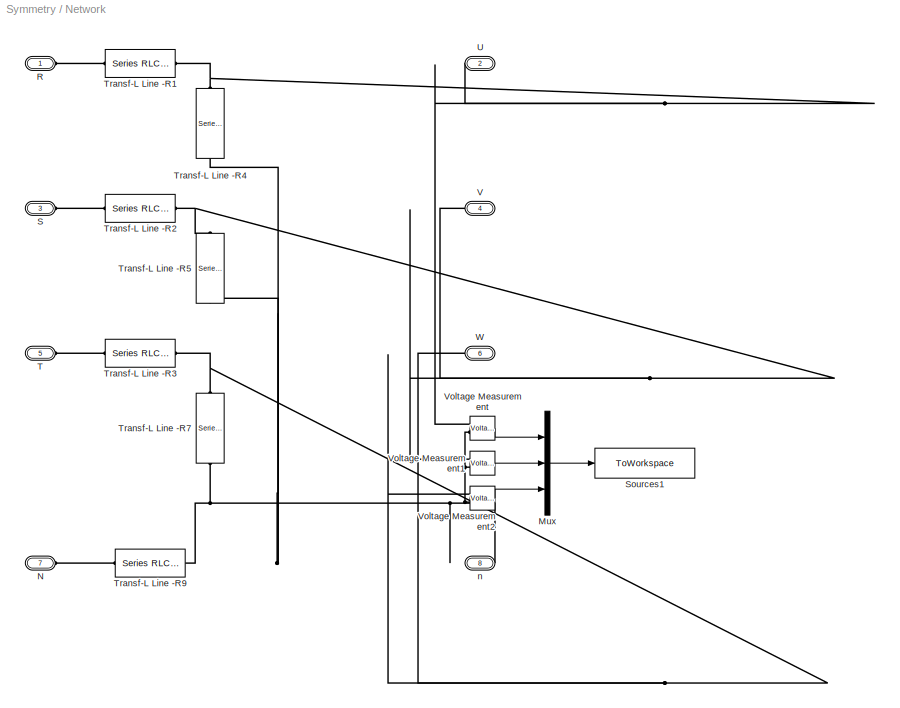
BLOCK [SubSystem] Network
  Ports = [0, 0, 0, 0, 0, 4, 4]
  RequestExecContextInheritance = off
  SID = 668
BLOCK [Mux] Network/Mux
  DisplayOption = bar
  Inputs = 3
  Ports = [3, 1]
  SID = 1531
BLOCK [PMIOPort] Network/N
  Port = 7
  SID = 675
  Side = Left
BLOCK [PMIOPort] Network/R
  Port = 1
  SID = 669
  Side = Left
BLOCK [PMIOPort] Network/S
  Port = 3
  SID = 671
  Side = Left
BLOCK [ToWorkspace] Network/Sources1
  FixptAsFi = on
  MaxDataPoints = inf
  Ports = [1]
  SID = 777
  SampleTime = -1
  SaveFormat = Structure With Time
  VariableName = Network_Voltage
BLOCK [PMIOPort] Network/T
  Port = 5
  SID = 673
  Side = Left
BLOCK [Reference] Network/Transf-L  Line -R1  REF=powerlib/Elements/Series RLC Branch
  BranchType = RL
  Capacitance = 1.0
  Inductance = L_Network(1)
  InitialCurrent = 0
  InitialVoltage = 0
  LConnTagsString = __new0
  Measurements = None
  Ports = [0, 0, 0, 0, 0, 1, 1]
  RConnTagsString = __new0
  Resistance = R_Network(1)
  SID = 487
  SetiL0 = off
  Setx0 = off
  SourceBlock = powerlib/Elements/Series RLC Branch
  SourceType = Series RLC Branch
BLOCK [Reference] Network/Transf-L  Line -R2  REF=powerlib/Elements/Series RLC Branch
  BranchType = RL
  Capacitance = 1.0
  Inductance = L_Network(2)
  InitialCurrent = 0
  InitialVoltage = 0
  LConnTagsString = __new0
  Measurements = None
  Ports = [0, 0, 0, 0, 0, 1, 1]
  RConnTagsString = __new0
  Resistance = R_Network(2)
  SID = 739
  SetiL0 = off
  Setx0 = off
  SourceBlock = powerlib/Elements/Series RLC Branch
  SourceType = Series RLC Branch
BLOCK [Reference] Network/Transf-L  Line -R3  REF=powerlib/Elements/Series RLC Branch
  BranchType = RL
  Capacitance = 1.0
  Inductance = L_Network(3)
  InitialCurrent = 0
  InitialVoltage = 0
  LConnTagsString = __new0
  Measurements = None
  Ports = [0, 0, 0, 0, 0, 1, 1]
  RConnTagsString = __new0
  Resistance = R_Network(3)
  SID = 740
  SetiL0 = off
  Setx0 = off
  SourceBlock = powerlib/Elements/Series RLC Branch
  SourceType = Series RLC Branch
BLOCK [Reference] Network/Transf-L  Line -R4  REF=powerlib/Elements/Series RLC Branch
  BranchType = C
  Capacitance = C_Network(1)
  Inductance = 0.003185
  InitialCurrent = 0
  InitialVoltage = 0
  LConnTagsString = __new0
  Measurements = None
  Ports = [0, 0, 0, 0, 0, 1, 1]
  RConnTagsString = __new0
  Resistance = i
  SID = 490
  SetiL0 = off
  Setx0 = off
  SourceBlock = powerlib/Elements/Series RLC Branch
  SourceType = Series RLC Branch
BLOCK [Reference] Network/Transf-L  Line -R5  REF=powerlib/Elements/Series RLC Branch
  BranchType = C
  Capacitance = C_Network(2)
  Inductance = 0.003185
  InitialCurrent = 0
  InitialVoltage = 0
  LConnTagsString = __new0
  Measurements = None
  Ports = [0, 0, 0, 0, 0, 1, 1]
  RConnTagsString = __new0
  Resistance = i
  SID = 742
  SetiL0 = off
  Setx0 = off
  SourceBlock = powerlib/Elements/Series RLC Branch
  SourceType = Series RLC Branch
BLOCK [Reference] Network/Transf-L  Line -R7  REF=powerlib/Elements/Series RLC Branch
  BranchType = C
  Capacitance = C_Network(2)
  Inductance = 0.003185
  InitialCurrent = 0
  InitialVoltage = 0
  LConnTagsString = __new0
  Measurements = None
  Ports = [0, 0, 0, 0, 0, 1, 1]
  RConnTagsString = __new0
  Resistance = i
  SID = 743
  SetiL0 = off
  Setx0 = off
  SourceBlock = powerlib/Elements/Series RLC Branch
  SourceType = Series RLC Branch
BLOCK [Reference] Network/Transf-L  Line -R9  REF=powerlib/Elements/Series RLC Branch
  BranchType = RL
  Capacitance = 1.0
  Inductance = L_Network(4)
  InitialCurrent = 0
  InitialVoltage = 0
  LConnTagsString = __new0
  Measurements = None
  Ports = [0, 0, 0, 0, 0, 1, 1]
  RConnTagsString = __new0
  Resistance = R_Network(4)
  SID = 744
  SetiL0 = off
  Setx0 = off
  SourceBlock = powerlib/Elements/Series RLC Branch
  SourceType = Series RLC Branch
BLOCK [PMIOPort] Network/U
  Port = 2
  SID = 670
  Side = Right
BLOCK [PMIOPort] Network/V
  Port = 4
  SID = 672
  Side = Right
BLOCK [Reference] Network/Voltage Measurement  REF=powerlib/Measurements/Voltage Measurement
  OutputType = Complex
  PSBequivalent = 0
  PhasorSimulation = off
  Ports = [0, 1, 0, 0, 0, 2]
  SID = 1525
  SourceBlock = powerlib/Measurements/Voltage Measurement
  SourceType = Voltage Measurement
BLOCK [Reference] Network/Voltage Measurement1  REF=powerlib/Measurements/Voltage Measurement
  OutputType = Complex
  PSBequivalent = 0
  PhasorSimulation = off
  Ports = [0, 1, 0, 0, 0, 2]
  SID = 1528
  SourceBlock = powerlib/Measurements/Voltage Measurement
  SourceType = Voltage Measurement
BLOCK [Reference] Network/Voltage Measurement2  REF=powerlib/Measurements/Voltage Measurement
  OutputType = Complex
  PSBequivalent = 0
  PhasorSimulation = off
  Ports = [0, 1, 0, 0, 0, 2]
  SID = 1529
  SourceBlock = powerlib/Measurements/Voltage Measurement
  SourceType = Voltage Measurement
BLOCK [PMIOPort] Network/W
  Port = 6
  SID = 674
  Side = Right
BLOCK [PMIOPort] Network/n
  Port = 8
  SID = 1616
  Side = Right
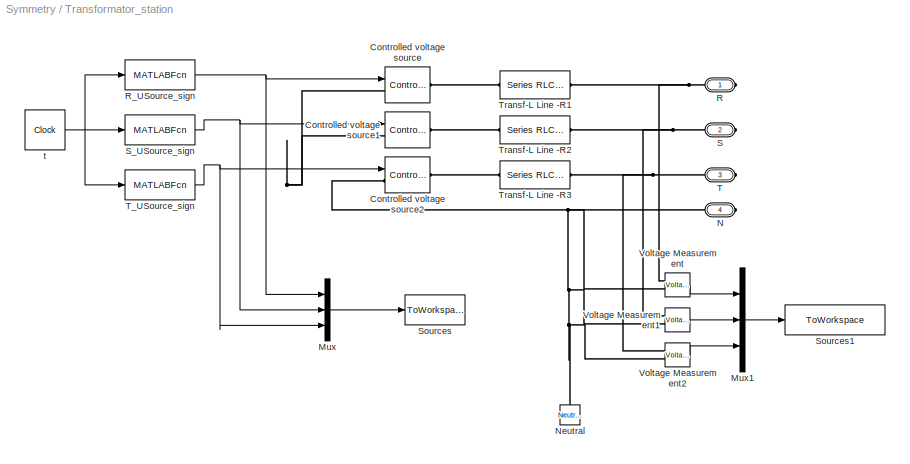
BLOCK [SubSystem] Transformator_station
  Ports = [0, 0, 0, 0, 0, 0, 4]
  RequestExecContextInheritance = off
  SID = 715
BLOCK [MATLABFcn] Transformator_station/ R_USource_sign
  MATLABFcn = sqrt(2)*Urms_Source(1)*sin(2*pi*Source_Frequency(1)*u+Phase_Source(1))
  Ports = [1, 1]
  SID = 716
  SampleTime = sample
BLOCK [MATLABFcn] Transformator_station/ S_USource_sign
  MATLABFcn = sqrt(2)*Urms_Source(2)*sin(2*pi*Source_Frequency(2)*u+Phase_Source(2))
  Ports = [1, 1]
  SID = 717
  SampleTime = sample
BLOCK [MATLABFcn] Transformator_station/ T_USource_sign
  MATLABFcn = sqrt(2)*Urms_Source(3)*sin(2*pi*Source_Frequency(2)*u+Phase_Source(3))
  Ports = [1, 1]
  SID = 718
  SampleTime = sample
BLOCK [Reference] Transformator_station/Controlled voltage source  REF=powerlib/Electrical\nSources/Controlled Voltage Source
  Amplitude = 0
  Frequency = 0
  Initialize = off
  Measurements = None
  Phase = 0
  Ports = [1, 0, 0, 0, 0, 1, 1]
  SID = 719
  SourceBlock = powerlib/Electrical\nSources/Controlled Voltage Source
  SourceType = Controlled Voltage Source
  Source_Type = AC
BLOCK [Reference] Transformator_station/Controlled voltage source1  REF=powerlib/Electrical\nSources/Controlled Voltage Source
  Amplitude = 0
  Frequency = 0
  Initialize = off
  Measurements = None
  Phase = 0
  Ports = [1, 0, 0, 0, 0, 1, 1]
  SID = 720
  SourceBlock = powerlib/Electrical\nSources/Controlled Voltage Source
  SourceType = Controlled Voltage Source
  Source_Type = AC
BLOCK [Reference] Transformator_station/Controlled voltage source2  REF=powerlib/Electrical\nSources/Controlled Voltage Source
  Amplitude = 0
  Frequency = 0
  Initialize = off
  Measurements = None
  Phase = 0
  Ports = [1, 0, 0, 0, 0, 1, 1]
  SID = 721
  SourceBlock = powerlib/Electrical\nSources/Controlled Voltage Source
  SourceType = Controlled Voltage Source
  Source_Type = AC
BLOCK [Mux] Transformator_station/Mux
  DisplayOption = bar
  Inputs = 3
  Ports = [3, 1]
  SID = 722
BLOCK [Mux] Transformator_station/Mux1
  DisplayOption = bar
  Inputs = 3
  Ports = [3, 1]
  SID = 1532
BLOCK [PMIOPort] Transformator_station/N
  Port = 4
  SID = 737
  Side = Right
BLOCK [Reference] Transformator_station/Neutral  REF=powerlib/Elements/Neutral
  AttributesFormatString = node %<NodeNumber>
  LConnTagsString = a
  NodeNumber = 10
  Ports = [0, 0, 0, 0, 0, 1]
  SID = 1537
  SourceBlock = powerlib/Elements/Neutral
  SourceType = Neutral
BLOCK [PMIOPort] Transformator_station/R
  Port = 1
  SID = 734
  Side = Right
BLOCK [PMIOPort] Transformator_station/S
  Port = 2
  SID = 735
  Side = Right
BLOCK [ToWorkspace] Transformator_station/Sources
  FixptAsFi = on
  MaxDataPoints = inf
  Ports = [1]
  SID = 725
  SampleTime = -1
  SaveFormat = Structure With Time
  VariableName = Sources
BLOCK [ToWorkspace] Transformator_station/Sources1
  FixptAsFi = on
  MaxDataPoints = inf
  Ports = [1]
  SID = 726
  SampleTime = -1
  SaveFormat = Structure With Time
  VariableName = Voltage_Sources
BLOCK [PMIOPort] Transformator_station/T
  Port = 3
  SID = 736
  Side = Right
BLOCK [Reference] Transformator_station/Transf-L  Line -R1  REF=powerlib/Elements/Series RLC Branch
  BranchType = RL
  Capacitance = 1.0
  Inductance = L_Source(1)
  InitialCurrent = 0
  InitialVoltage = 0
  LConnTagsString = __new0
  Measurements = None
  Ports = [0, 0, 0, 0, 0, 1, 1]
  RConnTagsString = __new0
  Resistance = R_Source(1)
  SID = 727
  SetiL0 = off
  Setx0 = off
  SourceBlock = powerlib/Elements/Series RLC Branch
  SourceType = Series RLC Branch
BLOCK [Reference] Transformator_station/Transf-L  Line -R2  REF=powerlib/Elements/Series RLC Branch
  BranchType = RL
  Capacitance = 1.0
  Inductance = L_Source(2)
  InitialCurrent = 0
  InitialVoltage = 0
  LConnTagsString = __new0
  Measurements = None
  Ports = [0, 0, 0, 0, 0, 1, 1]
  RConnTagsString = __new0
  Resistance = R_Source(2)
  SID = 745
  SetiL0 = off
  Setx0 = off
  SourceBlock = powerlib/Elements/Series RLC Branch
  SourceType = Series RLC Branch
BLOCK [Reference] Transformator_station/Transf-L  Line -R3  REF=powerlib/Elements/Series RLC Branch
  BranchType = RL
  Capacitance = 1.0
  Inductance = L_Source(3)
  InitialCurrent = 0
  InitialVoltage = 0
  LConnTagsString = __new0
  Measurements = None
  Ports = [0, 0, 0, 0, 0, 1, 1]
  RConnTagsString = __new0
  Resistance = R_Source(3)
  SID = 746
  SetiL0 = off
  Setx0 = off
  SourceBlock = powerlib/Elements/Series RLC Branch
  SourceType = Series RLC Branch
BLOCK [Reference] Transformator_station/Voltage Measurement  REF=powerlib/Measurements/Voltage Measurement
  OutputType = Complex
  PSBequivalent = 0
  PhasorSimulation = off
  Ports = [0, 1, 0, 0, 0, 2]
  SID = 1534
  SourceBlock = powerlib/Measurements/Voltage Measurement
  SourceType = Voltage Measurement
BLOCK [Reference] Transformator_station/Voltage Measurement1  REF=powerlib/Measurements/Voltage Measurement
  OutputType = Complex
  PSBequivalent = 0
  PhasorSimulation = off
  Ports = [0, 1, 0, 0, 0, 2]
  SID = 1535
  SourceBlock = powerlib/Measurements/Voltage Measurement
  SourceType = Voltage Measurement
BLOCK [Reference] Transformator_station/Voltage Measurement2  REF=powerlib/Measurements/Voltage Measurement
  OutputType = Complex
  PSBequivalent = 0
  PhasorSimulation = off
  Ports = [0, 1, 0, 0, 0, 2]
  SID = 1536
  SourceBlock = powerlib/Measurements/Voltage Measurement
  SourceType = Voltage Measurement
BLOCK [Clock] Transformator_station/t
  Decimation = CLK
  SID = 733
BLOCK [Reference] powergui  REF=powerlib/powergui
  DisableRonSwitches = off
  DisableSnubberDevices = off
  DisableVfSwitches = off
  DisplayEquations = off
  DisplayStyle = 1
  EnableUseOfTLC = off
  ErrMax = 1e-4
  Frange = [0:2:500]
  FreqAxis = off
  FunctionMessages = off
  HookPort = off
  Interpol = off
  Iterations = 50
  MaxFrequency = 1000
  Pbase = 100e6
  Ports = []
  ResistiveCurrentMeasurement = off
  RestoreLinks = warning
  RmsSteady = 1
  SID = 1
  SPID = off
  SampleTime = 50e-6
  ShowGrid = off
  SolverType = Tustin
  SourceBlock = powerlib/powergui
  SourceType = PSB option menu block
  StartTime = 0.0
  SwTol = 0
  Ts = 0
  UnitsV = kV
  UnitsW = MW
  UserData = DataTag0
  UserDataPersistent = on
  Xlog = on
  Ylog = off
  ZoomFFT = on
  cycles = 1
  display = off
  echomessages = off
  frequency = 60
  frequencyindice = 0
  frequencyindicesteady = 1
  fundamental = 60
  methode = off
  save = off
  structure = 0
  variable = ZData
  x0status = blocks
LINE Control_Current/Demux:1 -> Control_Current/P(t) Filter:1
LINE Control_Current/Demux:2 -> Control_Current/P(t) Filter1:1
LINE Control_Current/Demux:3 -> Control_Current/P(t) Filter2:1
LINE Control_Current/From\nWorkspace:1 -> Control_Current/Demux:1
LINE Control_Current/M3:1 -> Control_Current/Sources1:1
LINE Control_Current/P(t) Filter1:1 -> Control_Current/Controlled Current Source1:1
LINE Control_Current/P(t) Filter2:1 -> Control_Current/Controlled Current Source2:1
LINE Control_Current/P(t) Filter:1 -> Control_Current/Controlled Current Source:1
LINE Load/Conncection_Measurements/Current Measurement1:1 -> Load/Conncection_Measurements/Mux:2
LINE Load/Conncection_Measurements/Current Measurement2:1 -> Load/Conncection_Measurements/Mux:3
LINE Load/Conncection_Measurements/Current Measurement:1 -> Load/Conncection_Measurements/Mux:1
LINE Load/Conncection_Measurements/Mux1:1 -> Load/Conncection_Measurements/V_abc:1
LINE Load/Conncection_Measurements/Mux:1 -> Load/Conncection_Measurements/I_abc:1
LINE Load/Conncection_Measurements/Voltage Measurement1:1 -> Load/Conncection_Measurements/Mux1:2
LINE Load/Conncection_Measurements/Voltage Measurement2:1 -> Load/Conncection_Measurements/Mux1:3
LINE Load/Conncection_Measurements/Voltage Measurement:1 -> Load/Conncection_Measurements/Mux1:1
LINE Load/Conncection_Measurements:1 -> Load/Log_Signals:1
LINE Load/Conncection_Measurements:2 -> Load/Log_Signals:2
LINE Load/Loads/Capacitive_Loads_RST/Capacitive_Load_R/Capacitive_Load_R_1/Ron3:1 -> Load/Loads/Capacitive_Loads_RST/Capacitive_Load_R/Capacitive_Load_R_1/Breaker5:1
LINE Load/Loads/Capacitive_Loads_RST/Capacitive_Load_R/Capacitive_Load_R_2/Ron1:1 -> Load/Loads/Capacitive_Loads_RST/Capacitive_Load_R/Capacitive_Load_R_2/Breaker2:1
LINE Load/Loads/Capacitive_Loads_RST/Capacitive_Load_R/Capacitive_Load_R_3/Ron4:1 -> Load/Loads/Capacitive_Loads_RST/Capacitive_Load_R/Capacitive_Load_R_3/Breaker3:1
LINE Load/Loads/Capacitive_Loads_RST/Capacitive_Load_S/Capacitive_Load_S_1/Ron3:1 -> Load/Loads/Capacitive_Loads_RST/Capacitive_Load_S/Capacitive_Load_S_1/Breaker5:1
LINE Load/Loads/Capacitive_Loads_RST/Capacitive_Load_S/Capacitive_Load_S_2/Ron1:1 -> Load/Loads/Capacitive_Loads_RST/Capacitive_Load_S/Capacitive_Load_S_2/Breaker2:1
LINE Load/Loads/Capacitive_Loads_RST/Capacitive_Load_S/Capacitive_Load_S_3/Ron4:1 -> Load/Loads/Capacitive_Loads_RST/Capacitive_Load_S/Capacitive_Load_S_3/Breaker3:1
LINE Load/Loads/Capacitive_Loads_RST/Capacitive_Load_T/Capacitive_Load_R_1/Ron3:1 -> Load/Loads/Capacitive_Loads_RST/Capacitive_Load_T/Capacitive_Load_R_1/Breaker5:1
LINE Load/Loads/Capacitive_Loads_RST/Capacitive_Load_T/Capacitive_Load_R_2/Ron1:1 -> Load/Loads/Capacitive_Loads_RST/Capacitive_Load_T/Capacitive_Load_R_2/Breaker2:1
LINE Load/Loads/Capacitive_Loads_RST/Capacitive_Load_T/Capacitive_Load_R_3/Ron4:1 -> Load/Loads/Capacitive_Loads_RST/Capacitive_Load_T/Capacitive_Load_R_3/Breaker3:1
LINE Load/Loads/Capacitive_Loads_RST/NL Loads\nOn grid1:1 -> Load/Loads/Capacitive_Loads_RST/Breaker1:1
LINE Load/Loads/Capacitive_Loads_RST/NL Loads\nOn grid2:1 -> Load/Loads/Capacitive_Loads_RST/Breaker6:1
LINE Load/Loads/Capacitive_Loads_RST/NL Loads\nOn grid:1 -> Load/Loads/Capacitive_Loads_RST/Breaker4:1
LINE Load/Loads/Inductive_Loads_RST/Constant1:1 -> Load/Loads/Inductive_Loads_RST/Breaker1:1
LINE Load/Loads/Inductive_Loads_RST/Constant2:1 -> Load/Loads/Inductive_Loads_RST/Breaker2:1
LINE Load/Loads/Inductive_Loads_RST/Constant:1 -> Load/Loads/Inductive_Loads_RST/Breaker13:1
LINE Load/Loads/Inductive_Loads_RST/Ron1:1 -> Load/Loads/Inductive_Loads_RST/Breaker3:1
LINE Load/Loads/Inductive_Loads_RST/Ron2:1 -> Load/Loads/Inductive_Loads_RST/Breaker5:1
LINE Load/Loads/Inductive_Loads_RST/Ron3:1 -> Load/Loads/Inductive_Loads_RST/Breaker4:1
LINE Load/Loads/Ohmic_Loads_RST/Constant1:1 -> Load/Loads/Ohmic_Loads_RST/Breaker1:1
LINE Load/Loads/Ohmic_Loads_RST/Constant2:1 -> Load/Loads/Ohmic_Loads_RST/Breaker2:1
LINE Load/Loads/Ohmic_Loads_RST/Constant:1 -> Load/Loads/Ohmic_Loads_RST/Breaker13:1
LINE Load/Loads/Ohmic_Loads_RST/Ron1:1 -> Load/Loads/Ohmic_Loads_RST/Breaker3:1
LINE Load/Loads/Ohmic_Loads_RST/Ron2:1 -> Load/Loads/Ohmic_Loads_RST/Breaker5:1
LINE Load/Loads/Ohmic_Loads_RST/Ron3:1 -> Load/Loads/Ohmic_Loads_RST/Breaker4:1
LINE Load/Log_Signals/3_Phase_P_Q/Demux1:1 -> Load/Log_Signals/3_Phase_P_Q/P Q in3:2
LINE Load/Log_Signals/3_Phase_P_Q/Demux1:2 -> Load/Log_Signals/3_Phase_P_Q/P Q in4:2
LINE Load/Log_Signals/3_Phase_P_Q/Demux1:3 -> Load/Log_Signals/3_Phase_P_Q/P Q in5:2
LINE Load/Log_Signals/3_Phase_P_Q/Demux3:1 -> Load/Log_Signals/3_Phase_P_Q/P Q in3:1
LINE Load/Log_Signals/3_Phase_P_Q/Demux3:2 -> Load/Log_Signals/3_Phase_P_Q/P Q in4:1
LINE Load/Log_Signals/3_Phase_P_Q/Demux3:3 -> Load/Log_Signals/3_Phase_P_Q/P Q in5:1
LINE Load/Log_Signals/3_Phase_P_Q/I_RMS:1 -> Load/Log_Signals/3_Phase_P_Q/Demux1:1
LINE Load/Log_Signals/3_Phase_P_Q/Mux4:1 -> Load/Log_Signals/3_Phase_P_Q/P_Q_RMS:1
LINE Load/Log_Signals/3_Phase_P_Q/P Q in3:1 -> Load/Log_Signals/3_Phase_P_Q/Mux4:1
LINE Load/Log_Signals/3_Phase_P_Q/P Q in4:1 -> Load/Log_Signals/3_Phase_P_Q/Mux4:2
LINE Load/Log_Signals/3_Phase_P_Q/P Q in5:1 -> Load/Log_Signals/3_Phase_P_Q/Mux4:3
LINE Load/Log_Signals/3_Phase_P_Q/U_RMS:1 -> Load/Log_Signals/3_Phase_P_Q/Demux3:1
LINE Load/Log_Signals/3_Phase_P_Q:1 -> Load/Log_Signals/To Workspace6:1
LINE Load/Log_Signals/3_Phase_RMS/Demux5:1 -> Load/Log_Signals/3_Phase_RMS/RMS6:1
LINE Load/Log_Signals/3_Phase_RMS/Demux5:2 -> Load/Log_Signals/3_Phase_RMS/RMS1:1
LINE Load/Log_Signals/3_Phase_RMS/Demux5:3 -> Load/Log_Signals/3_Phase_RMS/RMS2:1
LINE Load/Log_Signals/3_Phase_RMS/Mux2:1 -> Load/Log_Signals/3_Phase_RMS/U_RMS:1
LINE Load/Log_Signals/3_Phase_RMS/RMS1:1 -> Load/Log_Signals/3_Phase_RMS/Mux2:2
LINE Load/Log_Signals/3_Phase_RMS/RMS2:1 -> Load/Log_Signals/3_Phase_RMS/Mux2:3
LINE Load/Log_Signals/3_Phase_RMS/RMS6:1 -> Load/Log_Signals/3_Phase_RMS/Mux2:1
LINE Load/Log_Signals/3_Phase_RMS/U_RST:1 -> Load/Log_Signals/3_Phase_RMS/Demux5:1
LINE Load/Log_Signals/3_Phase_RMS1/Demux5:1 -> Load/Log_Signals/3_Phase_RMS1/RMS6:1
LINE Load/Log_Signals/3_Phase_RMS1/Demux5:2 -> Load/Log_Signals/3_Phase_RMS1/RMS1:1
LINE Load/Log_Signals/3_Phase_RMS1/Demux5:3 -> Load/Log_Signals/3_Phase_RMS1/RMS2:1
LINE Load/Log_Signals/3_Phase_RMS1/I_RST:1 -> Load/Log_Signals/3_Phase_RMS1/Demux5:1
LINE Load/Log_Signals/3_Phase_RMS1/Mux2:1 -> Load/Log_Signals/3_Phase_RMS1/I_RMS:1
LINE Load/Log_Signals/3_Phase_RMS1/RMS1:1 -> Load/Log_Signals/3_Phase_RMS1/Mux2:2
LINE Load/Log_Signals/3_Phase_RMS1/RMS2:1 -> Load/Log_Signals/3_Phase_RMS1/Mux2:3
LINE Load/Log_Signals/3_Phase_RMS1/RMS6:1 -> Load/Log_Signals/3_Phase_RMS1/Mux2:1
LINE Load/Log_Signals/3_Phase_RMS1:1 -> Load/Log_Signals/To Workspace1:1
LINE Load/Log_Signals/3_Phase_RMS:1 -> Load/Log_Signals/To Workspace4:1
LINE Load/Log_Signals/3_Phase_THD/Demux1:1 -> Load/Log_Signals/3_Phase_THD/THD3:1
LINE Load/Log_Signals/3_Phase_THD/Demux1:2 -> Load/Log_Signals/3_Phase_THD/THD1:1
LINE Load/Log_Signals/3_Phase_THD/Demux1:3 -> Load/Log_Signals/3_Phase_THD/THD2:1
LINE Load/Log_Signals/3_Phase_THD/Mux7:1 -> Load/Log_Signals/3_Phase_THD/THD_RST:1
LINE Load/Log_Signals/3_Phase_THD/THD1:1 -> Load/Log_Signals/3_Phase_THD/Mux7:2
LINE Load/Log_Signals/3_Phase_THD/THD2:1 -> Load/Log_Signals/3_Phase_THD/Mux7:3
LINE Load/Log_Signals/3_Phase_THD/THD3:1 -> Load/Log_Signals/3_Phase_THD/Mux7:1
LINE Load/Log_Signals/3_Phase_THD/U_RST:1 -> Load/Log_Signals/3_Phase_THD/Demux1:1
LINE Load/Log_Signals/3_Phase_THD:1 -> Load/Log_Signals/To Workspace2:1
NET Load/Log_Signals/I_ABC:1 -> Load/Log_Signals/3_Phase_P_Q:2, Load/Log_Signals/3_Phase_RMS1:1, Load/Log_Signals/To Workspace:1
NET Load/Log_Signals/V_ABC:1 -> Load/Log_Signals/3_Phase_P_Q:1, Load/Log_Signals/3_Phase_RMS:1, Load/Log_Signals/3_Phase_THD:1, Load/Log_Signals/To Workspace5:1
LINE Network/Mux:1 -> Network/Sources1:1
LINE Network/Voltage Measurement1:1 -> Network/Mux:2
LINE Network/Voltage Measurement2:1 -> Network/Mux:3
LINE Network/Voltage Measurement:1 -> Network/Mux:1
NET Transformator_station/ R_USource_sign:1 -> Transformator_station/Controlled voltage source:1, Transformator_station/Mux:1
NET Transformator_station/ S_USource_sign:1 -> Transformator_station/Controlled voltage source1:1, Transformator_station/Mux:2
NET Transformator_station/ T_USource_sign:1 -> Transformator_station/Controlled voltage source2:1, Transformator_station/Mux:3
LINE Transformator_station/Mux1:1 -> Transformator_station/Sources1:1
LINE Transformator_station/Mux:1 -> Transformator_station/Sources:1
LINE Transformator_station/Voltage Measurement1:1 -> Transformator_station/Mux1:2
LINE Transformator_station/Voltage Measurement2:1 -> Transformator_station/Mux1:3
LINE Transformator_station/Voltage Measurement:1 -> Transformator_station/Mux1:1
NET Transformator_station/t:1 -> Transformator_station/ R_USource_sign:1, Transformator_station/ S_USource_sign:1, Transformator_station/ T_USource_sign:1
PNET net1: Control_Current/Controlled Current Source1:LConn1 -- Control_Current/Controlled Current Source2:LConn1 -- Control_Current/Controlled Current Source:LConn1 -- Control_Current/N:RConn1
PLINE Control_Current/Controlled Current Source1:RConn1 -- Control_Current/M3:LConn2
PLINE Control_Current/Controlled Current Source2:RConn1 -- Control_Current/M3:LConn3
PLINE Control_Current/Controlled Current Source:RConn1 -- Control_Current/M3:LConn1
PLINE Control_Current/M3:RConn1 -- Control_Current/R:RConn1
PLINE Control_Current/M3:RConn2 -- Control_Current/S:RConn1
PLINE Control_Current/M3:RConn3 -- Control_Current/T:RConn1
PNET net2: Control_Current:RConn1 -- Load:LConn1 -- Network:RConn1
PNET net3: Control_Current:RConn2 -- Load:LConn2 -- Network:RConn2
PNET net4: Control_Current:RConn3 -- Load:LConn3 -- Network:RConn3
PNET net5: Control_Current:RConn4 -- Load:LConn4 -- Network:RConn4
PNET net6: Load/Conncection_Measurements/A:RConn1 -- Load/Conncection_Measurements/Current Measurement:LConn1 -- Load/Conncection_Measurements/Voltage Measurement:LConn1
PNET net7: Load/Conncection_Measurements/B:RConn1 -- Load/Conncection_Measurements/Current Measurement1:LConn1 -- Load/Conncection_Measurements/Voltage Measurement1:LConn1
PNET net8: Load/Conncection_Measurements/C:RConn1 -- Load/Conncection_Measurements/Current Measurement2:LConn1 -- Load/Conncection_Measurements/Voltage Measurement2:LConn1
PLINE Load/Conncection_Measurements/Current Measurement1:RConn1 -- Load/Conncection_Measurements/b:RConn1
PLINE Load/Conncection_Measurements/Current Measurement2:RConn1 -- Load/Conncection_Measurements/c:RConn1
PLINE Load/Conncection_Measurements/Current Measurement:RConn1 -- Load/Conncection_Measurements/a:RConn1
PNET net9: Load/Conncection_Measurements/N:RConn1 -- Load/Conncection_Measurements/Voltage Measurement1:LConn2 -- Load/Conncection_Measurements/Voltage Measurement2:LConn2 -- Load/Conncection_Measurements/Voltage Measurement:LConn2 -- Load/Conncection_Measurements/n:RConn1
PLINE Load/Conncection_Measurements:LConn1 -- Load/Wire_resistance_1:RConn1
PLINE Load/Conncection_Measurements:LConn2 -- Load/Wire_resistance_1:RConn2
PLINE Load/Conncection_Measurements:LConn3 -- Load/Wire_resistance_1:RConn3
PLINE Load/Conncection_Measurements:LConn4 -- Load/Wire_resistance_1:RConn4
PLINE Load/Conncection_Measurements:RConn1 -- Load/Wire_resistance_2:LConn1
PLINE Load/Conncection_Measurements:RConn2 -- Load/Wire_resistance_2:LConn2
PLINE Load/Conncection_Measurements:RConn3 -- Load/Wire_resistance_2:LConn3
PLINE Load/Conncection_Measurements:RConn4 -- Load/Wire_resistance_2:LConn4
PLINE Load/Loads/Capacitive_Loads_RST/Breaker1:LConn1 -- Load/Loads/Capacitive_Loads_RST/S:RConn1
PLINE Load/Loads/Capacitive_Loads_RST/Breaker1:RConn1 -- Load/Loads/Capacitive_Loads_RST/Capacitive_Load_S:LConn1
PLINE Load/Loads/Capacitive_Loads_RST/Breaker4:LConn1 -- Load/Loads/Capacitive_Loads_RST/R:RConn1
PLINE Load/Loads/Capacitive_Loads_RST/Breaker4:RConn1 -- Load/Loads/Capacitive_Loads_RST/Capacitive_Load_R:LConn1
PLINE Load/Loads/Capacitive_Loads_RST/Breaker6:LConn1 -- Load/Loads/Capacitive_Loads_RST/T:RConn1
PLINE Load/Loads/Capacitive_Loads_RST/Breaker6:RConn1 -- Load/Loads/Capacitive_Loads_RST/Capacitive_Load_T:LConn1
PNET net10: Load/Loads/Capacitive_Loads_RST/Capacitive_Load_R/AC:RConn1 -- Load/Loads/Capacitive_Loads_RST/Capacitive_Load_R/Capacitive_Load_R_1:RConn1 -- Load/Loads/Capacitive_Loads_RST/Capacitive_Load_R/Capacitive_Load_R_2:LConn1 -- Load/Loads/Capacitive_Loads_RST/Capacitive_Load_R/Capacitive_Load_R_3:LConn1
PLINE Load/Loads/Capacitive_Loads_RST/Capacitive_Load_R/Capacitive_Load_R_1/AC:RConn1 -- Load/Loads/Capacitive_Loads_RST/Capacitive_Load_R/Capacitive_Load_R_1/Breaker5:LConn1
PLINE Load/Loads/Capacitive_Loads_RST/Capacitive_Load_R/Capacitive_Load_R_1/Breaker5:RConn1 -- Load/Loads/Capacitive_Loads_RST/Capacitive_Load_R/Capacitive_Load_R_1/Universal Bridge:LConn1
PLINE Load/Loads/Capacitive_Loads_RST/Capacitive_Load_R/Capacitive_Load_R_1/N:RConn1 -- Load/Loads/Capacitive_Loads_RST/Capacitive_Load_R/Capacitive_Load_R_1/Universal Bridge:LConn2
PLINE Load/Loads/Capacitive_Loads_RST/Capacitive_Load_R/Capacitive_Load_R_1/Parallel RLC Branch:LConn1 -- Load/Loads/Capacitive_Loads_RST/Capacitive_Load_R/Capacitive_Load_R_1/Universal Bridge:RConn1
PLINE Load/Loads/Capacitive_Loads_RST/Capacitive_Load_R/Capacitive_Load_R_1/Parallel RLC Branch:RConn1 -- Load/Loads/Capacitive_Loads_RST/Capacitive_Load_R/Capacitive_Load_R_1/Universal Bridge:RConn2
PNET net11: Load/Loads/Capacitive_Loads_RST/Capacitive_Load_R/Capacitive_Load_R_1:RConn2 -- Load/Loads/Capacitive_Loads_RST/Capacitive_Load_R/Capacitive_Load_R_2:LConn2 -- Load/Loads/Capacitive_Loads_RST/Capacitive_Load_R/Capacitive_Load_R_3:LConn2 -- Load/Loads/Capacitive_Loads_RST/Capacitive_Load_R/N:RConn1
PLINE Load/Loads/Capacitive_Loads_RST/Capacitive_Load_R/Capacitive_Load_R_2/AC:RConn1 -- Load/Loads/Capacitive_Loads_RST/Capacitive_Load_R/Capacitive_Load_R_2/Breaker2:LConn1
PLINE Load/Loads/Capacitive_Loads_RST/Capacitive_Load_R/Capacitive_Load_R_2/Breaker2:RConn1 -- Load/Loads/Capacitive_Loads_RST/Capacitive_Load_R/Capacitive_Load_R_2/Universal Bridge1:LConn1
PLINE Load/Loads/Capacitive_Loads_RST/Capacitive_Load_R/Capacitive_Load_R_2/N:RConn1 -- Load/Loads/Capacitive_Loads_RST/Capacitive_Load_R/Capacitive_Load_R_2/Universal Bridge1:LConn2
PLINE Load/Loads/Capacitive_Loads_RST/Capacitive_Load_R/Capacitive_Load_R_2/Parallel RLC Branch:LConn1 -- Load/Loads/Capacitive_Loads_RST/Capacitive_Load_R/Capacitive_Load_R_2/Universal Bridge1:RConn1
PLINE Load/Loads/Capacitive_Loads_RST/Capacitive_Load_R/Capacitive_Load_R_2/Parallel RLC Branch:RConn1 -- Load/Loads/Capacitive_Loads_RST/Capacitive_Load_R/Capacitive_Load_R_2/Universal Bridge1:RConn2
PLINE Load/Loads/Capacitive_Loads_RST/Capacitive_Load_R/Capacitive_Load_R_3/AC:RConn1 -- Load/Loads/Capacitive_Loads_RST/Capacitive_Load_R/Capacitive_Load_R_3/Breaker3:LConn1
PLINE Load/Loads/Capacitive_Loads_RST/Capacitive_Load_R/Capacitive_Load_R_3/Breaker3:RConn1 -- Load/Loads/Capacitive_Loads_RST/Capacitive_Load_R/Capacitive_Load_R_3/Universal Bridge2:LConn1
PLINE Load/Loads/Capacitive_Loads_RST/Capacitive_Load_R/Capacitive_Load_R_3/N :RConn1 -- Load/Loads/Capacitive_Loads_RST/Capacitive_Load_R/Capacitive_Load_R_3/Universal Bridge2:LConn2
PLINE Load/Loads/Capacitive_Loads_RST/Capacitive_Load_R/Capacitive_Load_R_3/Parallel RLC Branch:LConn1 -- Load/Loads/Capacitive_Loads_RST/Capacitive_Load_R/Capacitive_Load_R_3/Universal Bridge2:RConn1
PLINE Load/Loads/Capacitive_Loads_RST/Capacitive_Load_R/Capacitive_Load_R_3/Parallel RLC Branch:RConn1 -- Load/Loads/Capacitive_Loads_RST/Capacitive_Load_R/Capacitive_Load_R_3/Universal Bridge2:RConn2
PNET net12: Load/Loads/Capacitive_Loads_RST/Capacitive_Load_R:LConn2 -- Load/Loads/Capacitive_Loads_RST/Capacitive_Load_S:LConn2 -- Load/Loads/Capacitive_Loads_RST/Capacitive_Load_T:LConn2 -- Load/Loads/Capacitive_Loads_RST/N:RConn1
PNET net13: Load/Loads/Capacitive_Loads_RST/Capacitive_Load_S/AC:RConn1 -- Load/Loads/Capacitive_Loads_RST/Capacitive_Load_S/Capacitive_Load_S_1:RConn1 -- Load/Loads/Capacitive_Loads_RST/Capacitive_Load_S/Capacitive_Load_S_2:LConn1 -- Load/Loads/Capacitive_Loads_RST/Capacitive_Load_S/Capacitive_Load_S_3:LConn1
PLINE Load/Loads/Capacitive_Loads_RST/Capacitive_Load_S/Capacitive_Load_S_1/AC:RConn1 -- Load/Loads/Capacitive_Loads_RST/Capacitive_Load_S/Capacitive_Load_S_1/Breaker5:LConn1
PLINE Load/Loads/Capacitive_Loads_RST/Capacitive_Load_S/Capacitive_Load_S_1/Breaker5:RConn1 -- Load/Loads/Capacitive_Loads_RST/Capacitive_Load_S/Capacitive_Load_S_1/Universal Bridge:LConn1
PLINE Load/Loads/Capacitive_Loads_RST/Capacitive_Load_S/Capacitive_Load_S_1/N:RConn1 -- Load/Loads/Capacitive_Loads_RST/Capacitive_Load_S/Capacitive_Load_S_1/Universal Bridge:LConn2
PLINE Load/Loads/Capacitive_Loads_RST/Capacitive_Load_S/Capacitive_Load_S_1/Parallel RLC Branch:LConn1 -- Load/Loads/Capacitive_Loads_RST/Capacitive_Load_S/Capacitive_Load_S_1/Universal Bridge:RConn1
PLINE Load/Loads/Capacitive_Loads_RST/Capacitive_Load_S/Capacitive_Load_S_1/Parallel RLC Branch:RConn1 -- Load/Loads/Capacitive_Loads_RST/Capacitive_Load_S/Capacitive_Load_S_1/Universal Bridge:RConn2
PNET net14: Load/Loads/Capacitive_Loads_RST/Capacitive_Load_S/Capacitive_Load_S_1:RConn2 -- Load/Loads/Capacitive_Loads_RST/Capacitive_Load_S/Capacitive_Load_S_2:LConn2 -- Load/Loads/Capacitive_Loads_RST/Capacitive_Load_S/Capacitive_Load_S_3:LConn2 -- Load/Loads/Capacitive_Loads_RST/Capacitive_Load_S/N:RConn1
PLINE Load/Loads/Capacitive_Loads_RST/Capacitive_Load_S/Capacitive_Load_S_2/AC:RConn1 -- Load/Loads/Capacitive_Loads_RST/Capacitive_Load_S/Capacitive_Load_S_2/Breaker2:LConn1
PLINE Load/Loads/Capacitive_Loads_RST/Capacitive_Load_S/Capacitive_Load_S_2/Breaker2:RConn1 -- Load/Loads/Capacitive_Loads_RST/Capacitive_Load_S/Capacitive_Load_S_2/Universal Bridge1:LConn1
PLINE Load/Loads/Capacitive_Loads_RST/Capacitive_Load_S/Capacitive_Load_S_2/N:RConn1 -- Load/Loads/Capacitive_Loads_RST/Capacitive_Load_S/Capacitive_Load_S_2/Universal Bridge1:LConn2
PLINE Load/Loads/Capacitive_Loads_RST/Capacitive_Load_S/Capacitive_Load_S_2/Parallel RLC Branch:LConn1 -- Load/Loads/Capacitive_Loads_RST/Capacitive_Load_S/Capacitive_Load_S_2/Universal Bridge1:RConn1
PLINE Load/Loads/Capacitive_Loads_RST/Capacitive_Load_S/Capacitive_Load_S_2/Parallel RLC Branch:RConn1 -- Load/Loads/Capacitive_Loads_RST/Capacitive_Load_S/Capacitive_Load_S_2/Universal Bridge1:RConn2
PLINE Load/Loads/Capacitive_Loads_RST/Capacitive_Load_S/Capacitive_Load_S_3/AC:RConn1 -- Load/Loads/Capacitive_Loads_RST/Capacitive_Load_S/Capacitive_Load_S_3/Breaker3:LConn1
PLINE Load/Loads/Capacitive_Loads_RST/Capacitive_Load_S/Capacitive_Load_S_3/Breaker3:RConn1 -- Load/Loads/Capacitive_Loads_RST/Capacitive_Load_S/Capacitive_Load_S_3/Universal Bridge2:LConn1
PLINE Load/Loads/Capacitive_Loads_RST/Capacitive_Load_S/Capacitive_Load_S_3/N :RConn1 -- Load/Loads/Capacitive_Loads_RST/Capacitive_Load_S/Capacitive_Load_S_3/Universal Bridge2:LConn2
PLINE Load/Loads/Capacitive_Loads_RST/Capacitive_Load_S/Capacitive_Load_S_3/Parallel RLC Branch:LConn1 -- Load/Loads/Capacitive_Loads_RST/Capacitive_Load_S/Capacitive_Load_S_3/Universal Bridge2:RConn1
PLINE Load/Loads/Capacitive_Loads_RST/Capacitive_Load_S/Capacitive_Load_S_3/Parallel RLC Branch:RConn1 -- Load/Loads/Capacitive_Loads_RST/Capacitive_Load_S/Capacitive_Load_S_3/Universal Bridge2:RConn2
PNET net15: Load/Loads/Capacitive_Loads_RST/Capacitive_Load_T/AC:RConn1 -- Load/Loads/Capacitive_Loads_RST/Capacitive_Load_T/Capacitive_Load_R_1:RConn1 -- Load/Loads/Capacitive_Loads_RST/Capacitive_Load_T/Capacitive_Load_R_2:LConn1 -- Load/Loads/Capacitive_Loads_RST/Capacitive_Load_T/Capacitive_Load_R_3:LConn1
PLINE Load/Loads/Capacitive_Loads_RST/Capacitive_Load_T/Capacitive_Load_R_1/AC:RConn1 -- Load/Loads/Capacitive_Loads_RST/Capacitive_Load_T/Capacitive_Load_R_1/Breaker5:LConn1
PLINE Load/Loads/Capacitive_Loads_RST/Capacitive_Load_T/Capacitive_Load_R_1/Breaker5:RConn1 -- Load/Loads/Capacitive_Loads_RST/Capacitive_Load_T/Capacitive_Load_R_1/Universal Bridge:LConn1
PLINE Load/Loads/Capacitive_Loads_RST/Capacitive_Load_T/Capacitive_Load_R_1/N:RConn1 -- Load/Loads/Capacitive_Loads_RST/Capacitive_Load_T/Capacitive_Load_R_1/Universal Bridge:LConn2
PLINE Load/Loads/Capacitive_Loads_RST/Capacitive_Load_T/Capacitive_Load_R_1/Parallel RLC Branch:LConn1 -- Load/Loads/Capacitive_Loads_RST/Capacitive_Load_T/Capacitive_Load_R_1/Universal Bridge:RConn1
PLINE Load/Loads/Capacitive_Loads_RST/Capacitive_Load_T/Capacitive_Load_R_1/Parallel RLC Branch:RConn1 -- Load/Loads/Capacitive_Loads_RST/Capacitive_Load_T/Capacitive_Load_R_1/Universal Bridge:RConn2
PNET net16: Load/Loads/Capacitive_Loads_RST/Capacitive_Load_T/Capacitive_Load_R_1:RConn2 -- Load/Loads/Capacitive_Loads_RST/Capacitive_Load_T/Capacitive_Load_R_2:LConn2 -- Load/Loads/Capacitive_Loads_RST/Capacitive_Load_T/Capacitive_Load_R_3:LConn2 -- Load/Loads/Capacitive_Loads_RST/Capacitive_Load_T/N:RConn1
PLINE Load/Loads/Capacitive_Loads_RST/Capacitive_Load_T/Capacitive_Load_R_2/AC:RConn1 -- Load/Loads/Capacitive_Loads_RST/Capacitive_Load_T/Capacitive_Load_R_2/Breaker2:LConn1
PLINE Load/Loads/Capacitive_Loads_RST/Capacitive_Load_T/Capacitive_Load_R_2/Breaker2:RConn1 -- Load/Loads/Capacitive_Loads_RST/Capacitive_Load_T/Capacitive_Load_R_2/Universal Bridge1:LConn1
PLINE Load/Loads/Capacitive_Loads_RST/Capacitive_Load_T/Capacitive_Load_R_2/N:RConn1 -- Load/Loads/Capacitive_Loads_RST/Capacitive_Load_T/Capacitive_Load_R_2/Universal Bridge1:LConn2
PLINE Load/Loads/Capacitive_Loads_RST/Capacitive_Load_T/Capacitive_Load_R_2/Parallel RLC Branch:LConn1 -- Load/Loads/Capacitive_Loads_RST/Capacitive_Load_T/Capacitive_Load_R_2/Universal Bridge1:RConn1
PLINE Load/Loads/Capacitive_Loads_RST/Capacitive_Load_T/Capacitive_Load_R_2/Parallel RLC Branch:RConn1 -- Load/Loads/Capacitive_Loads_RST/Capacitive_Load_T/Capacitive_Load_R_2/Universal Bridge1:RConn2
PLINE Load/Loads/Capacitive_Loads_RST/Capacitive_Load_T/Capacitive_Load_R_3/AC:RConn1 -- Load/Loads/Capacitive_Loads_RST/Capacitive_Load_T/Capacitive_Load_R_3/Breaker3:LConn1
PLINE Load/Loads/Capacitive_Loads_RST/Capacitive_Load_T/Capacitive_Load_R_3/Breaker3:RConn1 -- Load/Loads/Capacitive_Loads_RST/Capacitive_Load_T/Capacitive_Load_R_3/Universal Bridge2:LConn1
PLINE Load/Loads/Capacitive_Loads_RST/Capacitive_Load_T/Capacitive_Load_R_3/N :RConn1 -- Load/Loads/Capacitive_Loads_RST/Capacitive_Load_T/Capacitive_Load_R_3/Universal Bridge2:LConn2
PLINE Load/Loads/Capacitive_Loads_RST/Capacitive_Load_T/Capacitive_Load_R_3/Parallel RLC Branch:LConn1 -- Load/Loads/Capacitive_Loads_RST/Capacitive_Load_T/Capacitive_Load_R_3/Universal Bridge2:RConn1
PLINE Load/Loads/Capacitive_Loads_RST/Capacitive_Load_T/Capacitive_Load_R_3/Parallel RLC Branch:RConn1 -- Load/Loads/Capacitive_Loads_RST/Capacitive_Load_T/Capacitive_Load_R_3/Universal Bridge2:RConn2
PNET net17: Load/Loads/Capacitive_Loads_RST:LConn1 -- Load/Loads/Inductive_Loads_RST:RConn1 -- Load/Loads/N:RConn1 -- Load/Loads/Ohmic_Loads_RST:RConn1
PNET net18: Load/Loads/Capacitive_Loads_RST:RConn1 -- Load/Loads/Inductive_Loads_RST:LConn1 -- Load/Loads/Ohmic_Loads_RST:LConn1 -- Load/Loads/R:RConn1
PNET net19: Load/Loads/Capacitive_Loads_RST:RConn2 -- Load/Loads/Inductive_Loads_RST:LConn2 -- Load/Loads/Ohmic_Loads_RST:LConn2 -- Load/Loads/S:RConn1
PNET net20: Load/Loads/Capacitive_Loads_RST:RConn3 -- Load/Loads/Inductive_Loads_RST:LConn3 -- Load/Loads/Ohmic_Loads_RST:LConn3 -- Load/Loads/T:RConn1
PLINE Load/Loads/Inductive_Loads_RST/Breaker13:LConn1 -- Load/Loads/Inductive_Loads_RST/R:RConn1
PLINE Load/Loads/Inductive_Loads_RST/Breaker13:RConn1 -- Load/Loads/Inductive_Loads_RST/Breaker4:LConn1
PLINE Load/Loads/Inductive_Loads_RST/Breaker1:LConn1 -- Load/Loads/Inductive_Loads_RST/S:RConn1
PLINE Load/Loads/Inductive_Loads_RST/Breaker1:RConn1 -- Load/Loads/Inductive_Loads_RST/Breaker3:LConn1
PLINE Load/Loads/Inductive_Loads_RST/Breaker2:LConn1 -- Load/Loads/Inductive_Loads_RST/T:RConn1
PLINE Load/Loads/Inductive_Loads_RST/Breaker2:RConn1 -- Load/Loads/Inductive_Loads_RST/Breaker5:LConn1
PLINE Load/Loads/Inductive_Loads_RST/Breaker3:RConn1 -- Load/Loads/Inductive_Loads_RST/RL_load1:LConn1
PLINE Load/Loads/Inductive_Loads_RST/Breaker4:RConn1 -- Load/Loads/Inductive_Loads_RST/RL_load:LConn1
PLINE Load/Loads/Inductive_Loads_RST/Breaker5:RConn1 -- Load/Loads/Inductive_Loads_RST/RL_load2:LConn1
PNET net21: Load/Loads/Inductive_Loads_RST/N:RConn1 -- Load/Loads/Inductive_Loads_RST/RL_load1:RConn1 -- Load/Loads/Inductive_Loads_RST/RL_load2:RConn1 -- Load/Loads/Inductive_Loads_RST/RL_load:RConn1
PLINE Load/Loads/Ohmic_Loads_RST/Breaker13:LConn1 -- Load/Loads/Ohmic_Loads_RST/R:RConn1
PLINE Load/Loads/Ohmic_Loads_RST/Breaker13:RConn1 -- Load/Loads/Ohmic_Loads_RST/Breaker4:LConn1
PLINE Load/Loads/Ohmic_Loads_RST/Breaker1:LConn1 -- Load/Loads/Ohmic_Loads_RST/S:RConn1
PLINE Load/Loads/Ohmic_Loads_RST/Breaker1:RConn1 -- Load/Loads/Ohmic_Loads_RST/Breaker3:LConn1
PLINE Load/Loads/Ohmic_Loads_RST/Breaker2:LConn1 -- Load/Loads/Ohmic_Loads_RST/T:RConn1
PLINE Load/Loads/Ohmic_Loads_RST/Breaker2:RConn1 -- Load/Loads/Ohmic_Loads_RST/Breaker5:LConn1
PLINE Load/Loads/Ohmic_Loads_RST/Breaker3:RConn1 -- Load/Loads/Ohmic_Loads_RST/R_load1:LConn1
PLINE Load/Loads/Ohmic_Loads_RST/Breaker4:RConn1 -- Load/Loads/Ohmic_Loads_RST/R_load:LConn1
PLINE Load/Loads/Ohmic_Loads_RST/Breaker5:RConn1 -- Load/Loads/Ohmic_Loads_RST/R_load2:LConn1
PNET net22: Load/Loads/Ohmic_Loads_RST/N:RConn1 -- Load/Loads/Ohmic_Loads_RST/R_load1:RConn1 -- Load/Loads/Ohmic_Loads_RST/R_load2:RConn1 -- Load/Loads/Ohmic_Loads_RST/R_load:RConn1
PLINE Load/Loads:LConn1 -- Load/Wire_resistance_2:RConn1
PLINE Load/Loads:LConn2 -- Load/Wire_resistance_2:RConn2
PLINE Load/Loads:LConn3 -- Load/Wire_resistance_2:RConn3
PLINE Load/Loads:LConn4 -- Load/Wire_resistance_2:RConn4
PLINE Load/N:RConn1 -- Load/Wire_resistance_1:LConn4
PLINE Load/R:RConn1 -- Load/Wire_resistance_1:LConn1
PLINE Load/S:RConn1 -- Load/Wire_resistance_1:LConn2
PLINE Load/T:RConn1 -- Load/Wire_resistance_1:LConn3
PLINE Load/Wire_resistance_1/A:RConn1 -- Load/Wire_resistance_1/Series RLC Branch:LConn1
PLINE Load/Wire_resistance_1/B:RConn1 -- Load/Wire_resistance_1/Series RLC Branch5:LConn1
PLINE Load/Wire_resistance_1/C:RConn1 -- Load/Wire_resistance_1/Series RLC Branch6:LConn1
PLINE Load/Wire_resistance_1/N:RConn1 -- Load/Wire_resistance_1/Series RLC Branch7:LConn1
PLINE Load/Wire_resistance_1/Series RLC Branch5:RConn1 -- Load/Wire_resistance_1/b:RConn1
PLINE Load/Wire_resistance_1/Series RLC Branch6:RConn1 -- Load/Wire_resistance_1/c:RConn1
PLINE Load/Wire_resistance_1/Series RLC Branch7:RConn1 -- Load/Wire_resistance_1/n:RConn1
PLINE Load/Wire_resistance_1/Series RLC Branch:RConn1 -- Load/Wire_resistance_1/a:RConn1
PLINE Load/Wire_resistance_2/A:RConn1 -- Load/Wire_resistance_2/Series RLC Branch1:LConn1
PLINE Load/Wire_resistance_2/B:RConn1 -- Load/Wire_resistance_2/Series RLC Branch2:LConn1
PLINE Load/Wire_resistance_2/C:RConn1 -- Load/Wire_resistance_2/Series RLC Branch3:LConn1
PLINE Load/Wire_resistance_2/N:RConn1 -- Load/Wire_resistance_2/Series RLC Branch4:LConn1
PLINE Load/Wire_resistance_2/Series RLC Branch1:RConn1 -- Load/Wire_resistance_2/a:RConn1
PLINE Load/Wire_resistance_2/Series RLC Branch2:RConn1 -- Load/Wire_resistance_2/b:RConn1
PLINE Load/Wire_resistance_2/Series RLC Branch3:RConn1 -- Load/Wire_resistance_2/c:RConn1
PLINE Load/Wire_resistance_2/Series RLC Branch4:RConn1 -- Load/Wire_resistance_2/n:RConn1
PLINE Network/N:RConn1 -- Network/Transf-L  Line -R9:LConn1
PLINE Network/R:RConn1 -- Network/Transf-L  Line -R1:LConn1
PLINE Network/S:RConn1 -- Network/Transf-L  Line -R2:LConn1
PLINE Network/T:RConn1 -- Network/Transf-L  Line -R3:LConn1
PNET net23: Network/Transf-L  Line -R1:RConn1 -- Network/Transf-L  Line -R4:LConn1 -- Network/U:RConn1 -- Network/Voltage Measurement:LConn1
PNET net24: Network/Transf-L  Line -R2:RConn1 -- Network/Transf-L  Line -R5:LConn1 -- Network/V:RConn1 -- Network/Voltage Measurement1:LConn1
PNET net25: Network/Transf-L  Line -R3:RConn1 -- Network/Transf-L  Line -R7:LConn1 -- Network/Voltage Measurement2:LConn1 -- Network/W:RConn1
PNET net26: Network/Transf-L  Line -R4:RConn1 -- Network/Transf-L  Line -R5:RConn1 -- Network/Transf-L  Line -R7:RConn1 -- Network/Transf-L  Line -R9:RConn1 -- Network/Voltage Measurement1:LConn2 -- Network/Voltage Measurement2:LConn2 -- Network/Voltage Measurement:LConn2 -- Network/n:RConn1
PLINE Network:LConn1 -- Transformator_station:RConn1
PLINE Network:LConn2 -- Transformator_station:RConn2
PLINE Network:LConn3 -- Transformator_station:RConn3
PLINE Network:LConn4 -- Transformator_station:RConn4
PNET net27: Transformator_station/Controlled voltage source1:LConn1 -- Transformator_station/Controlled voltage source2:LConn1 -- Transformator_station/Controlled voltage source:LConn1 -- Transformator_station/N:RConn1 -- Transformator_station/Neutral:LConn1 -- Transformator_station/Voltage Measurement1:LConn2 -- Transformator_station/Voltage Measurement2:LConn2 -- Transformator_station/Voltage Measurement:LConn2
PLINE Transformator_station/Controlled voltage source1:RConn1 -- Transformator_station/Transf-L  Line -R2:LConn1
PLINE Transformator_station/Controlled voltage source2:RConn1 -- Transformator_station/Transf-L  Line -R3:LConn1
PLINE Transformator_station/Controlled voltage source:RConn1 -- Transformator_station/Transf-L  Line -R1:LConn1
PNET net28: Transformator_station/R:RConn1 -- Transformator_station/Transf-L  Line -R1:RConn1 -- Transformator_station/Voltage Measurement:LConn1
PNET net29: Transformator_station/S:RConn1 -- Transformator_station/Transf-L  Line -R2:RConn1 -- Transformator_station/Voltage Measurement1:LConn1
PNET net30: Transformator_station/T:RConn1 -- Transformator_station/Transf-L  Line -R3:RConn1 -- Transformator_station/Voltage Measurement2:LConn1
note: NET lines group one-source signal fan-out (src -> all destinations, sorted); 1:1 wires keep LINE; PNET lines group multi-terminal physical nets as a canonical sorted terminal list (undirected conserving connections); 2-terminal nets keep the pairwise PLINE form
